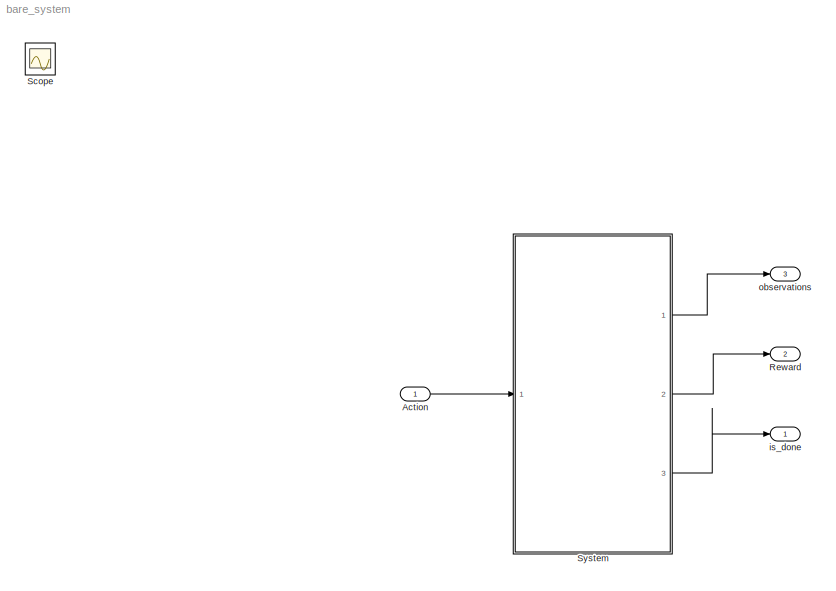
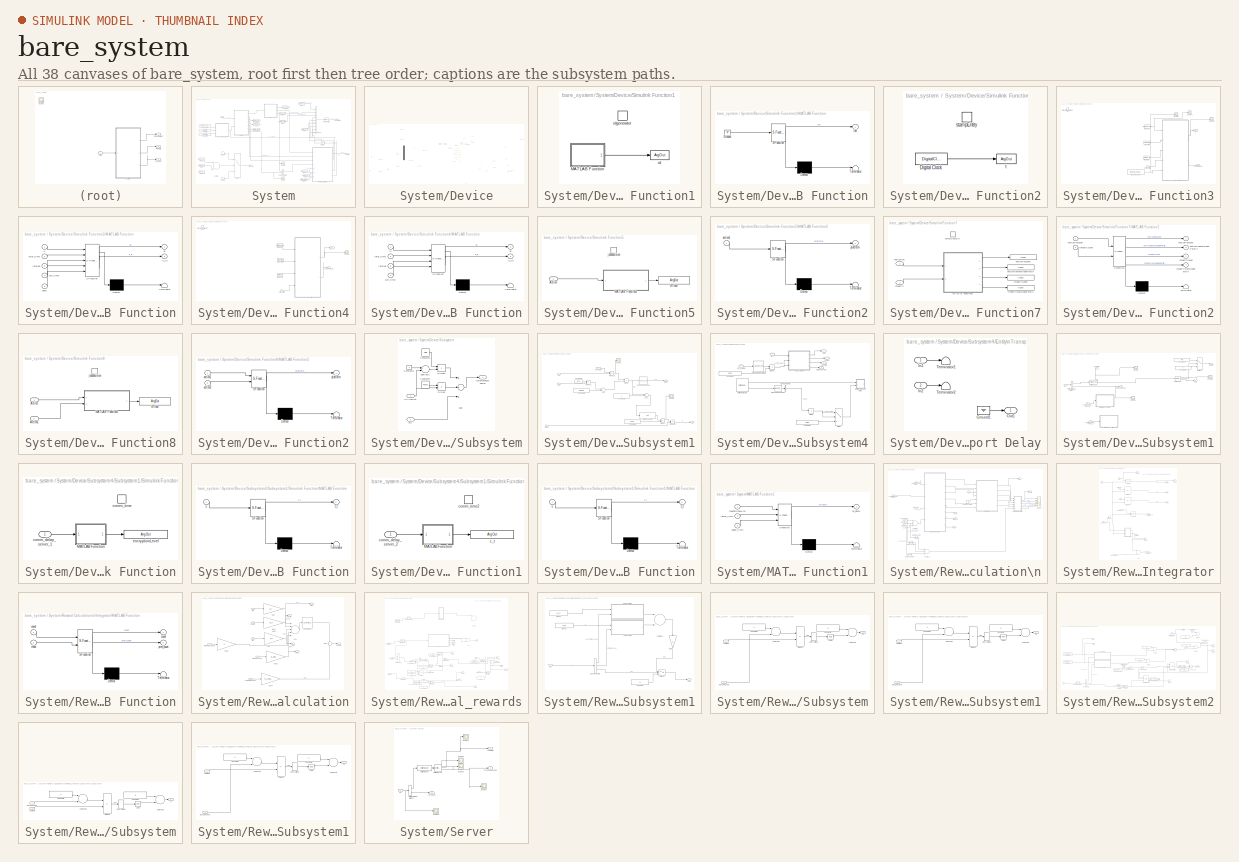
[diagram: thumbnail index - all 38 canvases of the model, root first then tree order]
MODEL bare_system
KIND model
BLOCK [Inport] Action
  IconDisplay = Port number
  SID = 502
  SampleTime = interval
BLOCK [Outport] Reward
  IconDisplay = Port number
  Port = 2
  SID = 501
  VectorParamsAs1DForOutWhenUnconnected = on
BLOCK [Scope] Scope
  Floating = off
  IOType = viewer
  NumInputPorts = 1
  Ports = []
  SID = 943
  ScopeSpecificationString = Simulink.scopes.TimeScopeBlockCfg('CurrentConfiguration', extmgr.ConfigurationSet(extmgr.Configuration('Core','General UI',true),extmgr.Configuration('Core','Source UI',true),extmgr.Configuration('Sources','WiredSimulink',true,'DataLoggingVariableName','ScopeData1'),extmgr.Configuration('Visuals','Time Domain',true,'SerializedDisplays',{struct('MinYLimReal','2.00000','MaxYLimReal','4.00000','YLabe...<+1398ch>
BLOCK [SubSystem] System
  Ports = [1, 3]
  RequestExecContextInheritance = off
  SID = 512
BLOCK [Inport] System/Action
  IconDisplay = Port number
  SID = 513
BLOCK [Constant] System/Constant1
  SID = 504
  Value = 0
BLOCK [Constant] System/Constant6
  SID = 505
BLOCK [SubSystem] System/Device
  Ports = [2, 7]
  RequestExecContextInheritance = off
  SID = 1
BLOCK [Inport] System/Device/Action
  IconDisplay = Port number
  SID = 2
BLOCK [BusSelector] System/Device/Bus\nSelector
  OutputAsBus = off
  OutputSignals = encryptionLevel,encryptionWorkloadPerBit,integrityLevel,integrityWorkloadPerBit,computeWorkloadPerBit,platform
  Ports = [1, 6]
  SID = 918
BLOCK [Clock] System/Device/Clock
  SID = 4
BLOCK [Clock] System/Device/Clock1
  SID = 5
BLOCK [Outport] System/Device/Comm_length
  IconDisplay = Port number
  Port = 6
  SID = 197
  VectorParamsAs1DForOutWhenUnconnected = on
BLOCK [Demux] System/Device/Demux
  DisplayOption = bar
  Outputs = 3
  Ports = [1, 3]
  SID = 6
BLOCK [Outport] System/Device/Dropped Jobs
  IconDisplay = Port number
  Port = 7
  SID = 641
  VectorParamsAs1DForOutWhenUnconnected = on
BLOCK [EntityGenerator] System/Device/Entity Generator1
  AttributeInitialValue = 100|0
  AttributeName = Size|GenerationTime
  EntityType = Bus object
  EntityTypeName = Job
  GenerateAction = entity.generationTime=stampEntity();\nentity.size=j1_data_size; %200 kb\nentity.id=idgenerator();\n\nentity.computeWorkloadPerBit=j1_computeLoadPerBit;\n[entity.encryptionLevel, entity.encryptionWorkloadPerBit,entity.integrityLevel, entity.integrityWorkloadPerBit] =selectSecurity();\nentity.dropped=0;\n% action=job1decision();\n% r=rand();\n% if (r<=action)\n%     entity.platform=1;\n% else\n%    ...<+59ch>
  GenerateEntityAtSimulationStart = off
  IntergenerationTimeAction = dt = predefinedArrivalTime();
  OutputPortMap = o3
  OutputPortMessageModes = m
  Ports = [0, 1]
  SID = 10
  TimeSource = MATLAB action
BLOCK [EntityQueue] System/Device/Entity Queue
  Capacity = 20
  InputPortMap = u0
  InputPortMessageModes = m
  NumberEntitiesInBlock = on
  OutputPortMap = o1,o5
  OutputPortMessageModes = n,m
  Ports = [1, 2]
  SID = 12
BLOCK [EntityReplicator] System/Device/Entity Replicator
  InputPortMap = u0
  InputPortMessageModes = m
  OutputPortMap = o0,o1
  OutputPortMessageModes = m,m
  Ports = [1, 2]
  SID = 917
BLOCK [EntityServer] System/Device/Entity Server
  AverageWait = on
  Capacity = device_cpu_cores
  InputPortMap = u2
  InputPortMessageModes = m
  OutputPortMap = o4,o5,o9
  OutputPortMessageModes = n,n,m
  Ports = [1, 3]
  SID = 13
  ServiceTimeAction = % Exponential service time with rate 1\n% mean = 0.1;\nif(entity.platform==1)\n   wl=entity.computeWorkloadPerBit*entity.size; \n   \nelse\n    wl=Im*(entity.encryptionWorkloadPerBit*entity.size+entity.integrityWorkloadPerBit*entity.size); \n    \nend\ndt=wl/Im;\n\n% dt   = -average_computation_time_local * log(1 - rand());
  ServiceTimeSource = MATLAB action
  Utilization = on
BLOCK [EntityInputSwitch] System/Device/Entity\nInput Switch
  InputPortMap = u1,u2
  InputPortMessageModes = m,m
  OutputPortMap = o0
  OutputPortMessageModes = m
  Ports = [2, 1]
  SID = 646
BLOCK [EntityOutputSwitch] System/Device/Entity\nOutput Switch1
  InputPortMap = u1
  InputPortMessageModes = m
  OutputPortMap = o0,o1
  OutputPortMessageModes = m,m
  Ports = [1, 2]
  SID = 640
  SwitchAttributeName = platform
BLOCK [EntityOutputSwitch] System/Device/Entity\nOutput Switch2
  InputPortMap = u1
  InputPortMessageModes = m
  OutputPortMap = o0,o1
  OutputPortMessageModes = m,m
  Ports = [1, 2]
  SID = 9
  SwitchAttributeName = platform
  SwitchingCriterion = From attribute
BLOCK [Outport] System/Device/Instantaneous Power
  IconDisplay = Port number
  Port = 5
  SID = 133
  VectorParamsAs1DForOutWhenUnconnected = on
BLOCK [Outport] System/Device/JobsInInterval
  IconDisplay = Port number
  Port = 4
  SID = 132
  VectorParamsAs1DForOutWhenUnconnected = on
BLOCK [Outport] System/Device/Length\n
  IconDisplay = Port number
  Port = 3
  SID = 131
  VectorParamsAs1DForOutWhenUnconnected = on
BLOCK [MessageReceive] System/Device/Message Receive
  InputPortMap = u0
  InputPortMessageModes = m
  OutputPortMap = o1
  Ports = [1, 1]
  SID = 916
BLOCK [Outport] System/Device/Offloaded Jobs
  IconDisplay = Port number
  SID = 129
  VectorParamsAs1DForOutWhenUnconnected = on
BLOCK [Outport] System/Device/Processed Jobs
  IconDisplay = Port number
  Port = 2
  SID = 130
  VectorParamsAs1DForOutWhenUnconnected = on
BLOCK [Scope] System/Device/Scope1
  Floating = off
  NumInputPorts = 1
  Ports = [1]
  SID = 845
  ScopeSpecificationString = Simulink.scopes.TimeScopeBlockCfg('CurrentConfiguration', extmgr.ConfigurationSet(extmgr.Configuration('Core','General UI',true),extmgr.Configuration('Core','Source UI',true),extmgr.Configuration('Sources','WiredSimulink',true,'DataLoggingVariableName','ScopeData6'),extmgr.Configuration('Visuals','Time Domain',true,'SerializedDisplays',{struct('MinYLimReal','-0.0176','MaxYLimReal','0.50219','YLabe...<+1710ch>
BLOCK [Scope] System/Device/Scope3
  Floating = off
  NumInputPorts = 1
  Ports = [1]
  SID = 903
  ScopeSpecificationString = Simulink.scopes.TimeScopeBlockCfg('CurrentConfiguration', extmgr.ConfigurationSet(extmgr.Configuration('Core','General UI',true),extmgr.Configuration('Core','Source UI',true),extmgr.Configuration('Sources','WiredSimulink',true,'DataLoggingVariableName','ScopeData1'),extmgr.Configuration('Visuals','Time Domain',true,'SerializedDisplays',{struct('MinYLimReal','-0.02137','MaxYLimReal','0.19232','YLab...<+1711ch>
BLOCK [Scope] System/Device/Scope6
  Floating = off
  NumInputPorts = 1
  Ports = [1]
  SID = 913
  ScopeSpecificationString = Simulink.scopes.TimeScopeBlockCfg('CurrentConfiguration', extmgr.ConfigurationSet(extmgr.Configuration('Core','General UI',true),extmgr.Configuration('Core','Source UI',true),extmgr.Configuration('Sources','WiredSimulink',true,'DataLoggingVariableName','ScopeData2'),extmgr.Configuration('Visuals','Time Domain',true,'SerializedDisplays',{struct('MinYLimReal','-209715.2','MaxYLimReal','1887436.8','Y...<+2024ch>
BLOCK [Scope] System/Device/Scope7
  Floating = off
  NumInputPorts = 1
  Ports = [1]
  SID = 914
  ScopeSpecificationString = Simulink.scopes.TimeScopeBlockCfg('CurrentConfiguration', extmgr.ConfigurationSet(extmgr.Configuration('Core','General UI',true),extmgr.Configuration('Core','Source UI',true),extmgr.Configuration('Sources','WiredSimulink',true,'DataLoggingVariableName','ScopeData3'),extmgr.Configuration('Visuals','Time Domain',true,'SerializedDisplays',{struct('MinYLimReal','-209715.2','MaxYLimReal','1887436.8','Y...<+2145ch>
BLOCK [Scope] System/Device/Scope8
  Floating = off
  NumInputPorts = 1
  Ports = [1]
  SID = 915
  ScopeSpecificationString = Simulink.scopes.TimeScopeBlockCfg('CurrentConfiguration', extmgr.ConfigurationSet(extmgr.Configuration('Core','General UI',true),extmgr.Configuration('Core','Source UI',true),extmgr.Configuration('Sources','WiredSimulink',true,'DataLoggingVariableName','ScopeData4'),extmgr.Configuration('Visuals','Time Domain',true,'SerializedDisplays',{struct('MinYLimReal','-0.125','MaxYLimReal','1.125','YLabelRe...<+1647ch>
BLOCK [Scope] System/Device/Scope9
  Floating = off
  NumInputPorts = 6
  Ports = [6]
  SID = 919
  ScopeSpecificationString = Simulink.scopes.TimeScopeBlockCfg('CurrentConfiguration', extmgr.ConfigurationSet(extmgr.Configuration('Core','General UI',true),extmgr.Configuration('Core','Source UI',true),extmgr.Configuration('Sources','WiredSimulink',true,'DataLoggingVariableName','ScopeData5'),extmgr.Configuration('Visuals','Time Domain',true,'SerializedDisplays',{struct('MinYLimReal','-0.125','MaxYLimReal','1.125','YLabelRe...<+5139ch>
BLOCK [SubSystem] System/Device/Simulink Function1
  Ports = [0, 0, 0, 1]
  RequestExecContextInheritance = off
  SID = 17
  TreatAsAtomicUnit = on
BLOCK [SubSystem] System/Device/Simulink Function1/MATLAB Function
  ErrorFcn = Stateflow.Translate.translate
  PermitHierarchicalResolution = ExplicitOnly
  Ports = [0, 1]
  RequestExecContextInheritance = off
  SFBlockType = MATLAB Function
  SID = 19
  TreatAsAtomicUnit = on
BLOCK [Demux] System/Device/Simulink Function1/MATLAB Function/ Demux 
  Outputs = 1
  Ports = [1, 1]
  SID = 19::28
BLOCK [Ground] System/Device/Simulink Function1/MATLAB Function/ Ground 
  SID = 19::30
BLOCK [S-Function] System/Device/Simulink Function1/MATLAB Function/ SFunction 
  EnableBusSupport = on
  FunctionName = sf_sfun
  PortCounts = [1 2]
  Ports = [1, 2]
  SFcnIsStateOwnerBlock = off
  SFunctionDeploymentMode = off
  SID = 19::27
  Tag = Stateflow S-Function bare_system 2
BLOCK [Terminator] System/Device/Simulink Function1/MATLAB Function/ Terminator 
  SID = 19::29
BLOCK [Outport] System/Device/Simulink Function1/MATLAB Function/idx
  IconDisplay = Port number
  SID = 19::5
  VectorParamsAs1DForOutWhenUnconnected = on
BLOCK [ArgOut] System/Device/Simulink Function1/id
  ArgumentName = id
  DisableCoverage = on
  SID = 20
BLOCK [TriggerPort] System/Device/Simulink Function1/idgenerator
  FunctionName = idgenerator
  IsSimulinkFunction = on
  Ports = []
  SID = 18
  StatesWhenEnabling = held
  TriggerType = function-call
  VariantControl = Variant
BLOCK [SubSystem] System/Device/Simulink Function2
  Ports = [0, 0, 0, 1]
  RequestExecContextInheritance = off
  SID = 21
  TreatAsAtomicUnit = on
BLOCK [DigitalClock] System/Device/Simulink Function2/Digital Clock
  SID = 23
  SampleTime = -1
BLOCK [TriggerPort] System/Device/Simulink Function2/stampEntity
  FunctionName = stampEntity
  IsSimulinkFunction = on
  Ports = []
  SID = 22
  StatesWhenEnabling = held
  TriggerType = function-call
  VariantControl = Variant
BLOCK [ArgOut] System/Device/Simulink Function2/t
  ArgumentName = t
  DisableCoverage = on
  SID = 24
BLOCK [SubSystem] System/Device/Simulink Function3
  Ports = [1, 1, 0, 1]
  RequestExecContextInheritance = off
  SID = 25
  TreatAsAtomicUnit = on
BLOCK [Constant] System/Device/Simulink Function3/Arrival Rate2
  SID = 28
  SampleTime = -1
  Value = interval
BLOCK [Outport] System/Device/Simulink Function3/JobsInInterval
  IconDisplay = Port number
  SID = 35
  VectorParamsAs1DForOutWhenUnconnected = on
BLOCK [SubSystem] System/Device/Simulink Function3/MATLAB Function
  ErrorFcn = Stateflow.Translate.translate
  PermitHierarchicalResolution = ExplicitOnly
  Ports = [5, 2]
  RequestExecContextInheritance = off
  SFBlockType = MATLAB Function
  SID = 29
  TreatAsAtomicUnit = on
BLOCK [Demux] System/Device/Simulink Function3/MATLAB Function/ Demux 
  Outputs = 1
  Ports = [1, 1]
  SID = 29::37
BLOCK [S-Function] System/Device/Simulink Function3/MATLAB Function/ SFunction 
  EnableBusSupport = on
  FunctionName = sf_sfun
  PortCounts = [5 3]
  Ports = [5, 3]
  SFcnIsStateOwnerBlock = off
  SFunctionDeploymentMode = off
  SID = 29::36
  Tag = Stateflow S-Function bare_system 1
BLOCK [Terminator] System/Device/Simulink Function3/MATLAB Function/ Terminator 
  SID = 29::38
BLOCK [Inport] System/Device/Simulink Function3/MATLAB Function/curr_time
  IconDisplay = Port number
  Port = 4
  SID = 29::27
BLOCK [Outport] System/Device/Simulink Function3/MATLAB Function/dt
  IconDisplay = Port number
  SID = 29::5
  VectorParamsAs1DForOutWhenUnconnected = on
BLOCK [Inport] System/Device/Simulink Function3/MATLAB Function/interval
  IconDisplay = Port number
  Port = 3
  SID = 29::24
BLOCK [Outport] System/Device/Simulink Function3/MATLAB Function/j1_in
  IconDisplay = Port number
  Port = 2
  SID = 29::30
  VectorParamsAs1DForOutWhenUnconnected = on
BLOCK [Inport] System/Device/Simulink Function3/MATLAB Function/l1
  IconDisplay = Port number
  SID = 29::26
BLOCK [Inport] System/Device/Simulink Function3/MATLAB Function/seed
  IconDisplay = Port number
  Port = 5
  SID = 29::32
BLOCK [Inport] System/Device/Simulink Function3/MATLAB Function/total_time
  IconDisplay = Port number
  Port = 2
  SID = 29::23
BLOCK [Scope] System/Device/Simulink Function3/Scope1
  Floating = off
  NumInputPorts = 1
  Ports = [1]
  SID = 853
  ScopeSpecificationString = Simulink.scopes.TimeScopeBlockCfg('CurrentConfiguration', extmgr.ConfigurationSet(extmgr.Configuration('Core','General UI',true),extmgr.Configuration('Core','Source UI',true),extmgr.Configuration('Sources','WiredSimulink',true,'DataLoggingVariableName','ScopeData1'),extmgr.Configuration('Visuals','Time Domain',true,'SerializedDisplays',{struct('MinYLimReal','108334.3','MaxYLimReal','308334.3','YLa...<+1525ch>
BLOCK [Scope] System/Device/Simulink Function3/Scope2
  Floating = off
  NumInputPorts = 1
  Ports = [1]
  SID = 897
  ScopeSpecificationString = Simulink.scopes.TimeScopeBlockCfg('CurrentConfiguration', extmgr.ConfigurationSet(extmgr.Configuration('Core','General UI',true),extmgr.Configuration('Core','Source UI',true),extmgr.Configuration('Sources','WiredSimulink',true,'DataLoggingVariableName','ScopeData1'),extmgr.Configuration('Visuals','Time Domain',true,'SerializedDisplays',{struct('MinYLimReal','2.00000','MaxYLimReal','4.00000','YLabe...<+1517ch>
BLOCK [Scope] System/Device/Simulink Function3/Scope5
  Floating = off
  NumInputPorts = 1
  Ports = [1]
  SID = 30
  ScopeSpecificationString = Simulink.scopes.TimeScopeBlockCfg('CurrentConfiguration', extmgr.ConfigurationSet(extmgr.Configuration('Core','General UI',true),extmgr.Configuration('Core','Source UI',true),extmgr.Configuration('Sources','WiredSimulink',true,'DataLoggingVariableName','ScopeData2'),extmgr.Configuration('Visuals','Time Domain',true,'SerializedDisplays',{struct('MinYLimReal','-0.2036','MaxYLimReal','1.87189','YLabe...<+1523ch>
BLOCK [Inport] System/Device/Simulink Function3/current_time
  IconDisplay = Port number
  SID = 26
BLOCK [Constant] System/Device/Simulink Function3/lambda1
  SID = 31
  SampleTime = -1
  Value = lambda1Arg
BLOCK [TriggerPort] System/Device/Simulink Function3/predefinedArrivalTime
  FunctionName = predefinedArrivalTime
  IsSimulinkFunction = on
  Ports = []
  SID = 27
  StatesWhenEnabling = held
  TriggerType = function-call
  VariantControl = Variant
BLOCK [Constant] System/Device/Simulink Function3/random_seed
  SID = 32
  SampleTime = -1
  Value = random_seedArg
BLOCK [Constant] System/Device/Simulink Function3/stopTime
  SID = 33
  SampleTime = -1
  Value = stopTime
BLOCK [ArgOut] System/Device/Simulink Function3/t1
  ArgumentName = t
  DisableCoverage = on
  SID = 34
BLOCK [SubSystem] System/Device/Simulink Function4
  Ports = [1, 1, 0, 1]
  RequestExecContextInheritance = off
  SID = 36
  TreatAsAtomicUnit = on
BLOCK [Constant] System/Device/Simulink Function4/Arrival Rate2
  SID = 39
  SampleTime = -1
  Value = interval
BLOCK [Outport] System/Device/Simulink Function4/JobsInInterval1
  IconDisplay = Port number
  SID = 45
  VectorParamsAs1DForOutWhenUnconnected = on
BLOCK [SubSystem] System/Device/Simulink Function4/MATLAB Function
  ErrorFcn = Stateflow.Translate.translate
  PermitHierarchicalResolution = ExplicitOnly
  Ports = [4, 2]
  RequestExecContextInheritance = off
  SFBlockType = MATLAB Function
  SID = 40
  TreatAsAtomicUnit = on
BLOCK [Demux] System/Device/Simulink Function4/MATLAB Function/ Demux 
  Outputs = 1
  Ports = [1, 1]
  SID = 40::36
BLOCK [S-Function] System/Device/Simulink Function4/MATLAB Function/ SFunction 
  EnableBusSupport = on
  FunctionName = sf_sfun
  PortCounts = [4 3]
  Ports = [4, 3]
  SFcnIsStateOwnerBlock = off
  SFunctionDeploymentMode = off
  SID = 40::35
  Tag = Stateflow S-Function bare_system 4
BLOCK [Terminator] System/Device/Simulink Function4/MATLAB Function/ Terminator 
  SID = 40::37
BLOCK [Inport] System/Device/Simulink Function4/MATLAB Function/curr_time
  IconDisplay = Port number
  Port = 4
  SID = 40::27
BLOCK [Outport] System/Device/Simulink Function4/MATLAB Function/dt
  IconDisplay = Port number
  SID = 40::25
  VectorParamsAs1DForOutWhenUnconnected = on
BLOCK [Inport] System/Device/Simulink Function4/MATLAB Function/interval
  IconDisplay = Port number
  Port = 3
  SID = 40::24
BLOCK [Outport] System/Device/Simulink Function4/MATLAB Function/j2_in
  IconDisplay = Port number
  Port = 2
  SID = 40::31
  VectorParamsAs1DForOutWhenUnconnected = on
BLOCK [Inport] System/Device/Simulink Function4/MATLAB Function/l2
  IconDisplay = Port number
  SID = 40::29
BLOCK [Inport] System/Device/Simulink Function4/MATLAB Function/total_time
  IconDisplay = Port number
  Port = 2
  SID = 40::23
BLOCK [Scope] System/Device/Simulink Function4/Scope1
  Floating = off
  NumInputPorts = 1
  Ports = [1]
  SID = 41
  ScopeSpecificationString = Simulink.scopes.TimeScopeBlockCfg('CurrentConfiguration', extmgr.ConfigurationSet(extmgr.Configuration('Core','General UI',true),extmgr.Configuration('Core','Source UI',true),extmgr.Configuration('Sources','WiredSimulink',true,'DataLoggingVariableName','ScopeData3'),extmgr.Configuration('Visuals','Time Domain',true,'SerializedDisplays',{struct('MinYLimReal','-0.26447','MaxYLimReal','2.53194','YLab...<+1523ch>
BLOCK [Inport] System/Device/Simulink Function4/current_time
  IconDisplay = Port number
  SID = 37
BLOCK [Constant] System/Device/Simulink Function4/lambda2
  SID = 42
  SampleTime = -1
  Value = lambda2Arg
BLOCK [TriggerPort] System/Device/Simulink Function4/predefinedArrivalTime2
  FunctionName = predefinedArrivalTime2
  IsSimulinkFunction = on
  Ports = []
  SID = 38
  StatesWhenEnabling = held
  TriggerType = function-call
  VariantControl = Variant
BLOCK [Constant] System/Device/Simulink Function4/stopTime
  SID = 43
  SampleTime = -1
  Value = stopTime
BLOCK [ArgOut] System/Device/Simulink Function4/t
  ArgumentName = t
  DisableCoverage = on
  SID = 44
BLOCK [SubSystem] System/Device/Simulink Function5
  Ports = [1, 0, 0, 1]
  RequestExecContextInheritance = off
  SID = 135
  TreatAsAtomicUnit = on
BLOCK [Inport] System/Device/Simulink Function5/Action
  IconDisplay = Port number
  SID = 136
BLOCK [SubSystem] System/Device/Simulink Function5/MATLAB Function2
  ErrorFcn = Stateflow.Translate.translate
  PermitHierarchicalResolution = ExplicitOnly
  Ports = [1, 1]
  RequestExecContextInheritance = off
  SFBlockType = MATLAB Function
  SID = 138
  TreatAsAtomicUnit = on
BLOCK [Demux] System/Device/Simulink Function5/MATLAB Function2/ Demux 
  Outputs = 1
  Ports = [1, 1]
  SID = 138::27
BLOCK [S-Function] System/Device/Simulink Function5/MATLAB Function2/ SFunction 
  EnableBusSupport = on
  FunctionName = sf_sfun
  PortCounts = [1 2]
  Ports = [1, 2]
  SFcnIsStateOwnerBlock = off
  SFunctionDeploymentMode = off
  SID = 138::26
  Tag = Stateflow S-Function bare_system 6
BLOCK [Terminator] System/Device/Simulink Function5/MATLAB Function2/ Terminator 
  SID = 138::28
BLOCK [Inport] System/Device/Simulink Function5/MATLAB Function2/action1
  IconDisplay = Port number
  SID = 138::1
BLOCK [Outport] System/Device/Simulink Function5/MATLAB Function2/platform
  IconDisplay = Port number
  SID = 138::5
  VectorParamsAs1DForOutWhenUnconnected = on
BLOCK [TriggerPort] System/Device/Simulink Function5/job1decision
  FunctionName = job1decision
  FunctionVisibility = scoped
  IsSimulinkFunction = on
  Ports = []
  SID = 137
  StatesWhenEnabling = held
  TriggerType = function-call
  VariantControl = (inherit)
BLOCK [ArgOut] System/Device/Simulink Function5/offload
  ArgumentName = platform
  DisableCoverage = on
  SID = 139
BLOCK [SubSystem] System/Device/Simulink Function7
  Ports = [2, 0, 0, 1]
  RequestExecContextInheritance = off
  SID = 52
  TreatAsAtomicUnit = on
BLOCK [SubSystem] System/Device/Simulink Function7/MATLAB Function2
  ErrorFcn = Stateflow.Translate.translate
  PermitHierarchicalResolution = ExplicitOnly
  Ports = [2, 4]
  RequestExecContextInheritance = off
  SFBlockType = MATLAB Function
  SID = 56
  TreatAsAtomicUnit = on
BLOCK [Demux] System/Device/Simulink Function7/MATLAB Function2/ Demux 
  Outputs = 1
  Ports = [1, 1]
  SID = 56::30
BLOCK [S-Function] System/Device/Simulink Function7/MATLAB Function2/ SFunction 
  EnableBusSupport = on
  FunctionName = sf_sfun
  PortCounts = [2 5]
  Ports = [2, 5]
  SFcnIsStateOwnerBlock = off
  SFunctionDeploymentMode = off
  SID = 56::29
  Tag = Stateflow S-Function bare_system 3
BLOCK [Terminator] System/Device/Simulink Function7/MATLAB Function2/ Terminator 
  SID = 56::31
BLOCK [Outport] System/Device/Simulink Function7/MATLAB Function2/encryptionLevel
  IconDisplay = Port number
  SID = 56::5
  VectorParamsAs1DForOutWhenUnconnected = on
BLOCK [Inport] System/Device/Simulink Function7/MATLAB Function2/encryptionLevel 
  IconDisplay = Port number
  SID = 56::1
BLOCK [Outport] System/Device/Simulink Function7/MATLAB Function2/encryptionWorkloadPerBit
  IconDisplay = Port number
  Port = 2
  SID = 56::23
  VectorParamsAs1DForOutWhenUnconnected = on
BLOCK [Outport] System/Device/Simulink Function7/MATLAB Function2/integrityLevel
  IconDisplay = Port number
  Port = 3
  SID = 56::24
  VectorParamsAs1DForOutWhenUnconnected = on
BLOCK [Inport] System/Device/Simulink Function7/MATLAB Function2/integrityLevel 
  IconDisplay = Port number
  Port = 2
  SID = 56::22
BLOCK [Outport] System/Device/Simulink Function7/MATLAB Function2/integrityWorkloadPerBit
  IconDisplay = Port number
  Port = 4
  SID = 56::25
  VectorParamsAs1DForOutWhenUnconnected = on
BLOCK [Inport] System/Device/Simulink Function7/encryption
  IconDisplay = Port number
  SID = 53
BLOCK [ArgOut] System/Device/Simulink Function7/encryptionLevel
  ArgumentName = encryptionLevel
  DisableCoverage = on
  SID = 57
BLOCK [ArgOut] System/Device/Simulink Function7/encryptionWorkloadPerBit
  ArgumentName = encryptionWorkloadPerBit
  DisableCoverage = on
  Port = 2
  SID = 58
BLOCK [Inport] System/Device/Simulink Function7/integrity
  IconDisplay = Port number
  Port = 2
  SID = 54
BLOCK [ArgOut] System/Device/Simulink Function7/integrityLevel
  ArgumentName = integrityLevel
  DisableCoverage = on
  Port = 3
  SID = 59
BLOCK [ArgOut] System/Device/Simulink Function7/integrityWorkloadPerBit
  ArgumentName = integrityWorkloadPerBit
  DisableCoverage = on
  Port = 4
  SID = 60
BLOCK [TriggerPort] System/Device/Simulink Function7/selectSecurity
  FunctionName = selectSecurity
  FunctionVisibility = scoped
  IsSimulinkFunction = on
  Ports = []
  SID = 55
  StatesWhenEnabling = held
  TriggerType = function-call
  VariantControl = (inherit)
BLOCK [SubSystem] System/Device/Simulink Function8
  Commented = on
  Ports = [2, 0, 0, 1]
  RequestExecContextInheritance = off
  SID = 61
  TreatAsAtomicUnit = on
BLOCK [Inport] System/Device/Simulink Function8/Action
  IconDisplay = Port number
  SID = 62
BLOCK [Inport] System/Device/Simulink Function8/Action1
  IconDisplay = Port number
  Port = 2
  SID = 63
BLOCK [SubSystem] System/Device/Simulink Function8/MATLAB Function2
  ErrorFcn = Stateflow.Translate.translate
  PermitHierarchicalResolution = ExplicitOnly
  Ports = [2, 1]
  RequestExecContextInheritance = off
  SFBlockType = MATLAB Function
  SID = 65
  TreatAsAtomicUnit = on
BLOCK [Demux] System/Device/Simulink Function8/MATLAB Function2/ Demux 
  Outputs = 1
  Ports = [1, 1]
  SID = 65::27
BLOCK [S-Function] System/Device/Simulink Function8/MATLAB Function2/ SFunction 
  EnableBusSupport = on
  FunctionName = sf_sfun
  PortCounts = [2 2]
  Ports = [2, 2]
  SFcnIsStateOwnerBlock = off
  SFunctionDeploymentMode = off
  SID = 65::26
  Tag = Stateflow S-Function bare_system 5
BLOCK [Terminator] System/Device/Simulink Function8/MATLAB Function2/ Terminator 
  SID = 65::28
BLOCK [Inport] System/Device/Simulink Function8/MATLAB Function2/action1
  IconDisplay = Port number
  SID = 65::1
BLOCK [Inport] System/Device/Simulink Function8/MATLAB Function2/action2
  IconDisplay = Port number
  Port = 2
  SID = 65::22
BLOCK [Outport] System/Device/Simulink Function8/MATLAB Function2/platform
  IconDisplay = Port number
  SID = 65::5
  VectorParamsAs1DForOutWhenUnconnected = on
BLOCK [TriggerPort] System/Device/Simulink Function8/job2decision
  FunctionName = job2decision
  FunctionVisibility = scoped
  IsSimulinkFunction = on
  Ports = []
  SID = 64
  StatesWhenEnabling = held
  TriggerType = function-call
  VariantControl = (inherit)
BLOCK [ArgOut] System/Device/Simulink Function8/offload
  ArgumentName = platform
  DisableCoverage = on
  SID = 66
BLOCK [SubSystem] System/Device/Subsystem
  Ports = [2, 1]
  RequestExecContextInheritance = off
  SID = 67
BLOCK [Constant] System/Device/Subsystem/Constant1
  SID = 70
BLOCK [Constant] System/Device/Subsystem/Constant2
  SID = 71
  Value = Pidle
BLOCK [Constant] System/Device/Subsystem/Constant4
  SID = 72
  Value = Pexec
BLOCK [Product] System/Device/Subsystem/Divide
  InputSameDT = off
  Inputs = **
  OutDataTypeStr = Inherit: Inherit via internal rule
  Ports = [2, 1]
  RndMeth = Floor
  SID = 73
  SaturateOnIntegerOverflow = off
BLOCK [Product] System/Device/Subsystem/Divide1
  InputSameDT = off
  Inputs = **
  OutDataTypeStr = Inherit: Inherit via internal rule
  Ports = [2, 1]
  RndMeth = Floor
  SID = 74
  SaturateOnIntegerOverflow = off
BLOCK [Outport] System/Device/Subsystem/Instantaneous Power
  IconDisplay = Port number
  SID = 77
  VectorParamsAs1DForOutWhenUnconnected = on
BLOCK [Inport] System/Device/Subsystem/Ptx
  IconDisplay = Port number
  Port = 2
  SID = 69
BLOCK [Sum] System/Device/Subsystem/Subtract1
  InputSameDT = off
  Inputs = +-
  OutDataTypeStr = Inherit: Inherit via internal rule
  Ports = [2, 1]
  SID = 75
  SaturateOnIntegerOverflow = off
BLOCK [Inport] System/Device/Subsystem/Utilisation
  IconDisplay = Port number
  SID = 68
BLOCK [Sum] System/Device/Subsystem/add
  InputSameDT = off
  Inputs = +++
  OutDataTypeStr = Inherit: Inherit via internal rule
  Ports = [3, 1]
  SID = 76
  SaturateOnIntegerOverflow = off
BLOCK [SubSystem] System/Device/Subsystem1
  Commented = on
  Ports = [3, 2]
  RequestExecContextInheritance = off
  SID = 78
BLOCK [Lookup_n-D] System/Device/Subsystem1/1-D Lookup\nTable
  BreakpointsForDimension1 = [-5:5]
  InternalRulePriority = Speed
  NumberOfTableDimensions = 1
  Ports = [1, 1]
  RndMeth = Simplest
  SID = 82
  Table = tanh([-5:5])
BLOCK [Sum] System/Device/Subsystem1/Add
  InputSameDT = off
  OutDataTypeStr = Inherit: Inherit via internal rule
  Ports = [2, 1]
  SID = 83
  SaturateOnIntegerOverflow = off
BLOCK [Sum] System/Device/Subsystem1/Add1
  InputSameDT = off
  OutDataTypeStr = Inherit: Inherit via internal rule
  Ports = [2, 1]
  SID = 84
  SaturateOnIntegerOverflow = off
BLOCK [Outport] System/Device/Subsystem1/BER
  IconDisplay = Port number
  SID = 98
  VectorParamsAs1DForOutWhenUnconnected = on
BLOCK [Constant] System/Device/Subsystem1/Constant1
  SID = 85
  Value = G21
BLOCK [Constant] System/Device/Subsystem1/Constant2
  SID = 86
BLOCK [Constant] System/Device/Subsystem1/Constant3
  SID = 87
  Value = omega
BLOCK [Constant] System/Device/Subsystem1/Constant6
  SID = 88
  Value = G11
BLOCK [Constant] System/Device/Subsystem1/Constant8
  SID = 89
  Value = log(2)
BLOCK [Product] System/Device/Subsystem1/Divide
  InputSameDT = off
  Inputs = */
  OutDataTypeStr = Inherit: Inherit via internal rule
  Ports = [2, 1]
  RndMeth = Floor
  SID = 90
  SaturateOnIntegerOverflow = off
BLOCK [Product] System/Device/Subsystem1/Divide1
  InputSameDT = off
  Inputs = */
  OutDataTypeStr = Inherit: Inherit via internal rule
  Ports = [2, 1]
  RndMeth = Floor
  SID = 91
  SaturateOnIntegerOverflow = off
BLOCK [Math] System/Device/Subsystem1/Math\nFunction
  Operator = log
  Ports = [1, 1]
  SID = 92
BLOCK [Inport] System/Device/Subsystem1/P-k
  IconDisplay = Port number
  Port = 2
  SID = 80
BLOCK [Inport] System/Device/Subsystem1/Pk
  IconDisplay = Port number
  SID = 79
BLOCK [Product] System/Device/Subsystem1/Product
  InputSameDT = off
  OutDataTypeStr = Inherit: Inherit via internal rule
  Ports = [2, 1]
  RndMeth = Floor
  SID = 93
  SaturateOnIntegerOverflow = off
BLOCK [Product] System/Device/Subsystem1/Product1
  InputSameDT = off
  OutDataTypeStr = Inherit: Inherit via internal rule
  Ports = [2, 1]
  RndMeth = Floor
  SID = 94
  SaturateOnIntegerOverflow = off
BLOCK [Product] System/Device/Subsystem1/Product2
  InputSameDT = off
  OutDataTypeStr = Inherit: Inherit via internal rule
  Ports = [2, 1]
  RndMeth = Floor
  SID = 95
  SaturateOnIntegerOverflow = off
BLOCK [Outport] System/Device/Subsystem1/R
  IconDisplay = Port number
  Port = 2
  SID = 99
  VectorParamsAs1DForOutWhenUnconnected = on
BLOCK [Inport] System/Device/Subsystem1/Rmax
  IconDisplay = Port number
  Port = 3
  SID = 81
BLOCK [Scope] System/Device/Subsystem1/Scope
  Floating = off
  NumInputPorts = 1
  Ports = [1]
  SID = 96
  ScopeSpecificationString = Simulink.scopes.TimeScopeBlockCfg('CurrentConfiguration', extmgr.ConfigurationSet(extmgr.Configuration('Core','General UI',true),extmgr.Configuration('Core','Source UI',true),extmgr.Configuration('Sources','WiredSimulink',true,'DataLoggingVariableName','ScopeData3'),extmgr.Configuration('Visuals','Time Domain',true,'SerializedDisplays',{struct('MinYLimReal','-1.00000','MaxYLimReal','1.00000','YLab...<+1434ch>
BLOCK [Scope] System/Device/Subsystem1/Scope1
  Floating = off
  NumInputPorts = 1
  Ports = [1]
  SID = 97
  ScopeSpecificationString = Simulink.scopes.TimeScopeBlockCfg('CurrentConfiguration', extmgr.ConfigurationSet(extmgr.Configuration('Core','General UI',true),extmgr.Configuration('Core','Source UI',true),extmgr.Configuration('Sources','WiredSimulink',true,'DataLoggingVariableName','ScopeData4'),extmgr.Configuration('Visuals','Time Domain',true,'SerializedDisplays',{struct('MinYLimReal','-1.00000','MaxYLimReal','1.00000','YLab...<+1435ch>
BLOCK [SubSystem] System/Device/Subsystem4
  Ports = [2, 4]
  RequestExecContextInheritance = off
  SID = 160
BLOCK [Lookup_n-D] System/Device/Subsystem4/1-D Lookup\nTable
  BreakpointsForDimension1 = [1:100]
  InternalRulePriority = Speed
  NumberOfTableDimensions = 1
  Ports = [1, 1]
  RndMeth = Simplest
  SID = 163
  Table = Rate
BLOCK [BusSelector] System/Device/Subsystem4/Bus\nSelector1
  Commented = on
  OutputAsBus = off
  OutputSignals = size
  Ports = [1, 1]
  SID = 164
BLOCK [Constant] System/Device/Subsystem4/Constant1
  SID = 165
  Value = 1024
BLOCK [Constant] System/Device/Subsystem4/Constant2
  Commented = on
  SID = 166
  Value = delta
BLOCK [Product] System/Device/Subsystem4/Divide
  Commented = on
  InputSameDT = off
  Inputs = */
  OutDataTypeStr = Inherit: Inherit via internal rule
  Ports = [2, 1]
  RndMeth = Floor
  SID = 167
  SaturateOnIntegerOverflow = off
BLOCK [Product] System/Device/Subsystem4/Divide1
  InputSameDT = off
  Inputs = **
  OutDataTypeStr = Inherit: Inherit via internal rule
  Ports = [2, 1]
  RndMeth = Floor
  SID = 168
  SaturateOnIntegerOverflow = off
BLOCK [Outport] System/Device/Subsystem4/Dropped Jobs
  IconDisplay = Port number
  Port = 4
  SID = 644
  VectorParamsAs1DForOutWhenUnconnected = on
BLOCK [EntityReplicator] System/Device/Subsystem4/Entity Replicator
  Commented = on
  InputPortMap = u0
  InputPortMessageModes = m
  OutputPortMap = o0,o1
  OutputPortMessageModes = m,m
  Ports = [1, 2]
  SID = 170
BLOCK [SubSystem] System/Device/Subsystem4/Entity\nTransport Delay
  Commented = on
  Description = Replaced Block
  Ports = [2, 1]
  RequestExecContextInheritance = off
  SID = 198
BLOCK [Ground] System/Device/Subsystem4/Entity\nTransport Delay/Ground1
  SID = 201
BLOCK [Inport] System/Device/Subsystem4/Entity\nTransport Delay/In1
  IconDisplay = Port number
  SID = 199
BLOCK [Inport] System/Device/Subsystem4/Entity\nTransport Delay/In2
  IconDisplay = Port number
  Port = 2
  SID = 200
BLOCK [Outport] System/Device/Subsystem4/Entity\nTransport Delay/Out1
  IconDisplay = Port number
  SID = 204
  VectorParamsAs1DForOutWhenUnconnected = on
BLOCK [Terminator] System/Device/Subsystem4/Entity\nTransport Delay/Terminator1
  SID = 202
BLOCK [Terminator] System/Device/Subsystem4/Entity\nTransport Delay/Terminator2
  SID = 203
BLOCK [Inport] System/Device/Subsystem4/In1
  IconDisplay = Port number
  SID = 161
BLOCK [Outport] System/Device/Subsystem4/Length\n
  IconDisplay = Port number
  Port = 3
  SID = 196
  VectorParamsAs1DForOutWhenUnconnected = on
BLOCK [MessageReceive] System/Device/Subsystem4/Message Receive1
  Commented = on
  InputPortMap = u0
  InputPortMessageModes = m
  OutputPortMap = o1
  Ports = [1, 1]
  SID = 171
  ValueSourceWhenQueueIsEmpty = Use initial value
BLOCK [Outport] System/Device/Subsystem4/Out1
  IconDisplay = Port number
  SID = 191
  VectorParamsAs1DForOutWhenUnconnected = on
BLOCK [Outport] System/Device/Subsystem4/Power
  IconDisplay = Port number
  Port = 2
  SID = 192
  VectorParamsAs1DForOutWhenUnconnected = on
BLOCK [SubSystem] System/Device/Subsystem4/Subsystem1
  Ports = [3, 4]
  RequestExecContextInheritance = off
  SID = 172
BLOCK [Constant] System/Device/Subsystem4/Subsystem1/Constant1
  SID = 177
  Value = Ptx
BLOCK [Constant] System/Device/Subsystem4/Subsystem1/Constant3
  SID = 179
  Value = 0
BLOCK [Outport] System/Device/Subsystem4/Subsystem1/Dropped Jobs
  IconDisplay = Port number
  Port = 4
  SID = 643
  VectorParamsAs1DForOutWhenUnconnected = on
BLOCK [EntityQueue] System/Device/Subsystem4/Subsystem1/Entity Queue
  Capacity = 20
  InputPortMap = u0
  InputPortMessageModes = m
  NumberEntitiesInBlock = on
  OutputPortMap = o1,o5
  OutputPortMessageModes = n,m
  Ports = [1, 2]
  SID = 181
BLOCK [EntityServer] System/Device/Subsystem4/Subsystem1/Entity Server
  AverageWait = on
  Capacity = 1
  InputPortMap = u2
  InputPortMessageModes = m
  OutputPortMap = o4,o5,o9
  OutputPortMessageModes = n,n,m
  Ports = [1, 3]
  SID = 183
  ServiceTimeAction = % dt = rand(1,1);\n\nwl=entity.size;\nc_t=comm_time();\nc_t2=comm_time2();\nif(entity.platform==2)\n    dt=wl/c_t;\nelse\n    dt=wl/c_t2;\nend
  ServiceTimeSource = MATLAB action
  Utilization = on
BLOCK [EntityOutputSwitch] System/Device/Subsystem4/Subsystem1/Entity\nOutput Switch1
  InputPortMap = u1
  InputPortMessageModes = m
  OutputPortMap = o0,o1
  OutputPortMessageModes = m,m
  Ports = [1, 2]
  SID = 642
  SwitchAttributeName = platform
BLOCK [Inport] System/Device/Subsystem4/Subsystem1/In1
  IconDisplay = Port number
  SID = 173
BLOCK [Outport] System/Device/Subsystem4/Subsystem1/Length\n
  IconDisplay = Port number
  Port = 3
  SID = 195
  VectorParamsAs1DForOutWhenUnconnected = on
BLOCK [Outport] System/Device/Subsystem4/Subsystem1/Out1
  IconDisplay = Port number
  SID = 188
  VectorParamsAs1DForOutWhenUnconnected = on
BLOCK [Outport] System/Device/Subsystem4/Subsystem1/Power
  IconDisplay = Port number
  Port = 2
  SID = 189
  SampleTime = sample_time
  VectorParamsAs1DForOutWhenUnconnected = on
BLOCK [Scope] System/Device/Subsystem4/Subsystem1/Scope
  Floating = off
  NumInputPorts = 1
  Ports = [1]
  SID = 658
  ScopeSpecificationString = Simulink.scopes.TimeScopeBlockCfg('CurrentConfiguration', extmgr.ConfigurationSet(extmgr.Configuration('Core','General UI',true),extmgr.Configuration('Core','Source UI',true),extmgr.Configuration('Sources','WiredSimulink',true,'DataLoggingVariableName','ScopeData1'),extmgr.Configuration('Visuals','Time Domain',true,'SerializedDisplays',{struct('MinYLimReal','-1.00000','MaxYLimReal','9.00000','YLab...<+1394ch>
BLOCK [Scope] System/Device/Subsystem4/Subsystem1/Scope1
  Floating = off
  NumInputPorts = 1
  Ports = [1]
  SID = 659
  ScopeSpecificationString = Simulink.scopes.TimeScopeBlockCfg('CurrentConfiguration', extmgr.ConfigurationSet(extmgr.Configuration('Core','General UI',true),extmgr.Configuration('Core','Source UI',true),extmgr.Configuration('Sources','WiredSimulink',true,'DataLoggingVariableName','ScopeData2'),extmgr.Configuration('Visuals','Time Domain',true,'SerializedDisplays',{struct('MinYLimReal','-209715.2','MaxYLimReal','1887436.8','Y...<+1629ch>
BLOCK [Scope] System/Device/Subsystem4/Subsystem1/Scope2
  Floating = off
  NumInputPorts = 1
  Ports = [1]
  SID = 860
  ScopeSpecificationString = Simulink.scopes.TimeScopeBlockCfg('CurrentConfiguration', extmgr.ConfigurationSet(extmgr.Configuration('Core','General UI',true),extmgr.Configuration('Core','Source UI',true),extmgr.Configuration('Sources','WiredSimulink',true,'DataLoggingVariableName','ScopeData1'),extmgr.Configuration('Visuals','Time Domain',true,'SerializedDisplays',{struct('MinYLimReal','0.48672','MaxYLimReal','0.54238','YLabe...<+1609ch>
BLOCK [SubSystem] System/Device/Subsystem4/Subsystem1/Simulink Function
  Ports = [1, 0, 0, 1]
  RequestExecContextInheritance = off
  SID = 625
  TreatAsAtomicUnit = on
BLOCK [SubSystem] System/Device/Subsystem4/Subsystem1/Simulink Function/MATLAB Function
  ErrorFcn = Stateflow.Translate.translate
  PermitHierarchicalResolution = ExplicitOnly
  Ports = [1, 1]
  RequestExecContextInheritance = off
  SFBlockType = MATLAB Function
  SID = 629
  TreatAsAtomicUnit = on
BLOCK [Demux] System/Device/Subsystem4/Subsystem1/Simulink Function/MATLAB Function/ Demux 
  Outputs = 1
  Ports = [1, 1]
  SID = 629::20
BLOCK [S-Function] System/Device/Subsystem4/Subsystem1/Simulink Function/MATLAB Function/ SFunction 
  EnableBusSupport = on
  FunctionName = sf_sfun
  PortCounts = [1 2]
  Ports = [1, 2]
  SFcnIsStateOwnerBlock = off
  SFunctionDeploymentMode = off
  SID = 629::19
  Tag = Stateflow S-Function bare_system 8
BLOCK [Terminator] System/Device/Subsystem4/Subsystem1/Simulink Function/MATLAB Function/ Terminator 
  SID = 629::21
BLOCK [Outport] System/Device/Subsystem4/Subsystem1/Simulink Function/MATLAB Function/c_t
  IconDisplay = Port number
  SID = 629::5
BLOCK [Inport] System/Device/Subsystem4/Subsystem1/Simulink Function/MATLAB Function/u
  IconDisplay = Port number
  SID = 629::1
BLOCK [Inport] System/Device/Subsystem4/Subsystem1/Simulink Function/comm_delay_server_1
  IconDisplay = Port number
  SID = 631
BLOCK [TriggerPort] System/Device/Subsystem4/Subsystem1/Simulink Function/comm_time
  FunctionName = comm_time
  FunctionVisibility = scoped
  IsSimulinkFunction = on
  Ports = []
  SID = 626
  StatesWhenEnabling = held
  TriggerType = function-call
  VariantControl = (inherit)
BLOCK [ArgOut] System/Device/Subsystem4/Subsystem1/Simulink Function/encryptionLevel
  ArgumentName = c_t
  DisableCoverage = on
  SID = 630
BLOCK [SubSystem] System/Device/Subsystem4/Subsystem1/Simulink Function1
  Ports = [1, 0, 0, 1]
  RequestExecContextInheritance = off
  SID = 634
  TreatAsAtomicUnit = on
BLOCK [SubSystem] System/Device/Subsystem4/Subsystem1/Simulink Function1/MATLAB Function
  ErrorFcn = Stateflow.Translate.translate
  PermitHierarchicalResolution = ExplicitOnly
  Ports = [1, 1]
  RequestExecContextInheritance = off
  SFBlockType = MATLAB Function
  SID = 637
  TreatAsAtomicUnit = on
BLOCK [Demux] System/Device/Subsystem4/Subsystem1/Simulink Function1/MATLAB Function/ Demux 
  Outputs = 1
  Ports = [1, 1]
  SID = 637::20
BLOCK [S-Function] System/Device/Subsystem4/Subsystem1/Simulink Function1/MATLAB Function/ SFunction 
  EnableBusSupport = on
  FunctionName = sf_sfun
  PortCounts = [1 2]
  Ports = [1, 2]
  SFcnIsStateOwnerBlock = off
  SFunctionDeploymentMode = off
  SID = 637::19
  Tag = Stateflow S-Function bare_system 9
BLOCK [Terminator] System/Device/Subsystem4/Subsystem1/Simulink Function1/MATLAB Function/ Terminator 
  SID = 637::21
BLOCK [Outport] System/Device/Subsystem4/Subsystem1/Simulink Function1/MATLAB Function/c_t
  IconDisplay = Port number
  SID = 637::5
BLOCK [Inport] System/Device/Subsystem4/Subsystem1/Simulink Function1/MATLAB Function/u
  IconDisplay = Port number
  SID = 637::1
BLOCK [ArgOut] System/Device/Subsystem4/Subsystem1/Simulink Function1/c_t
  ArgumentName = c_t
  DisableCoverage = on
  SID = 638
BLOCK [Inport] System/Device/Subsystem4/Subsystem1/Simulink Function1/comm_delay_server_2
  IconDisplay = Port number
  SID = 639
BLOCK [TriggerPort] System/Device/Subsystem4/Subsystem1/Simulink Function1/comm_time2
  FunctionName = comm_time2
  FunctionVisibility = scoped
  IsSimulinkFunction = on
  Ports = []
  SID = 636
  StatesWhenEnabling = held
  TriggerType = function-call
  VariantControl = (inherit)
BLOCK [Switch] System/Device/Subsystem4/Subsystem1/Switch2
  Criteria = u2 > Threshold
  InputSameDT = off
  SID = 187
  SaturateOnIntegerOverflow = off
BLOCK [Inport] System/Device/Subsystem4/Subsystem1/comm_delay_server_1
  IconDisplay = Port number
  Port = 3
  SID = 175
BLOCK [Inport] System/Device/Subsystem4/Subsystem1/comm_delay_server_2
  IconDisplay = Port number
  Port = 2
  SID = 174
BLOCK [Switch] System/Device/Subsystem4/Switch
  Commented = on
  Criteria = u2 > Threshold
  InputSameDT = off
  SID = 190
  SaturateOnIntegerOverflow = off
BLOCK [Inport] System/Device/Subsystem4/no_users\n
  IconDisplay = Port number
  Port = 2
  SID = 162
BLOCK [Terminator] System/Device/Terminator
  SID = 562
BLOCK [UnitDelay] System/Device/Unit Delay
  HasFrameUpgradeWarning = on
  InitialCondition = [1 1 1]
  SID = 908
  SampleTime = -1
BLOCK [Inport] System/Device/no_users\n
  IconDisplay = Port number
  Port = 2
  SID = 193
BLOCK [EntityInputSwitch] System/Entity\nInput Switch
  InputPortMap = u1,u2
  InputPortMessageModes = m,m
  OutputPortMap = o0
  OutputPortMessageModes = m
  Ports = [2, 1]
  SID = 655
BLOCK [From] System/From1
  GotoTag = server_length
  SID = 349
BLOCK [From] System/From10
  GotoTag = device_length
  SID = 875
BLOCK [From] System/From2
  GotoTag = server_length
  SID = 506
BLOCK [From] System/From3
  GotoTag = comm_length
  SID = 350
BLOCK [From] System/From4
  Commented = on
  GotoTag = server2_length
  SID = 507
BLOCK [From] System/From5
  GotoTag = device_length
  SID = 508
BLOCK [From] System/From6
  GotoTag = device_length
  SID = 351
BLOCK [From] System/From7
  GotoTag = jobs_in_interval
  SID = 940
BLOCK [From] System/From8
  GotoTag = server_length
  SID = 873
BLOCK [From] System/From9
  GotoTag = comm_length
  SID = 874
BLOCK [Goto] System/Goto
  GotoTag = server_length
  SID = 356
BLOCK [Goto] System/Goto1
  GotoTag = comm_length
  SID = 503
BLOCK [Goto] System/Goto2
  GotoTag = device_length
  SID = 355
BLOCK [Goto] System/Goto3
  GotoTag = jobs_in_interval
  SID = 357
BLOCK [SubSystem] System/MATLAB Function1
  ErrorFcn = Stateflow.Translate.translate
  PermitHierarchicalResolution = ExplicitOnly
  Ports = [3, 1]
  RequestExecContextInheritance = off
  SFBlockType = MATLAB Function
  SID = 142
  SystemSampleTime = interval
  TreatAsAtomicUnit = on
BLOCK [Demux] System/MATLAB Function1/ Demux 
  Outputs = 1
  Ports = [1, 1]
  SID = 142::25
BLOCK [S-Function] System/MATLAB Function1/ SFunction 
  EnableBusSupport = on
  FunctionName = sf_sfun
  PortCounts = [3 2]
  Ports = [3, 2]
  SFcnIsStateOwnerBlock = off
  SFunctionDeploymentMode = off
  SID = 142::24
  Tag = Stateflow S-Function bare_system 7
BLOCK [Terminator] System/MATLAB Function1/ Terminator 
  SID = 142::26
BLOCK [Inport] System/MATLAB Function1/lower_limit
  IconDisplay = Port number
  Port = 2
  SID = 142::29
BLOCK [Outport] System/MATLAB Function1/no_users
  IconDisplay = Port number
  SID = 142::5
  VectorParamsAs1DForOutWhenUnconnected = on
BLOCK [Inport] System/MATLAB Function1/randomSeenArg
  IconDisplay = Port number
  SID = 142::28
BLOCK [Inport] System/MATLAB Function1/upper_limit
  IconDisplay = Port number
  Port = 3
  SID = 142::30
BLOCK [RateTransition] System/Rate Transition
  SID = 842
BLOCK [Outport] System/Reward
  IconDisplay = Port number
  Port = 2
  SID = 516
  VectorParamsAs1DForOutWhenUnconnected = on
BLOCK [SubSystem] System/Reward Calculation\n
  Ports = [7, 5]
  RequestExecContextInheritance = off
  SID = 205
BLOCK [Inport] System/Reward Calculation\n/Comm length
  IconDisplay = Port number
  Port = 7
  SID = 895
BLOCK [Inport] System/Reward Calculation\n/Completed Jobs Local
  IconDisplay = Port number
  Port = 2
  SID = 208
BLOCK [Inport] System/Reward Calculation\n/Completed Jobs Server
  IconDisplay = Port number
  SID = 207
BLOCK [Inport] System/Reward Calculation\n/Device length
  IconDisplay = Port number
  Port = 5
  SID = 893
BLOCK [Inport] System/Reward Calculation\n/Dropped\n
  IconDisplay = Port number
  Port = 4
  SID = 654
BLOCK [SubSystem] System/Reward Calculation\n/Integrator
  Ports = [7, 5]
  RequestExecContextInheritance = off
  SID = 329
BLOCK [Sum] System/Reward Calculation\n/Integrator/Add1
  InputSameDT = off
  OutDataTypeStr = Inherit: Inherit via internal rule
  Ports = [2, 1]
  SID = 653
  SaturateOnIntegerOverflow = off
BLOCK [Inport] System/Reward Calculation\n/Integrator/Completed Jobs
  IconDisplay = Port number
  Port = 4
  SID = 333
BLOCK [Outport] System/Reward Calculation\n/Integrator/Completed Jobs in Interval
  IconDisplay = Port number
  Port = 4
  SID = 344
  VectorParamsAs1DForOutWhenUnconnected = on
BLOCK [Reference] System/Reward Calculation\n/Integrator/Counter  REF=dspswit3/Counter
  CntDtype = double
  CountEvent = Falling edge
  CounterSize = User defined
  Direction = Up
  HitDtype = Logical
  HitValue = 32
  InitialCount = 0
  MaxCount = 1000
  MultiThreadCoSim = auto
  Output = Count
  Ports = [2, 1]
  ResetInput = on
  SID = 336
  SamplesPerFrame = 1
  SourceBlock = dspswit3/Counter
  SourceProductBaseCode = DS
  SourceProductName = DSP System Toolbox
  SourceType = Counter
  Ts = 1
BLOCK [Reference] System/Reward Calculation\n/Integrator/Counter1  REF=dspswit3/Counter
  CntDtype = double
  CountEvent = Falling edge
  CounterSize = User defined
  Direction = Up
  HitDtype = Logical
  HitValue = 32
  InitialCount = 0
  MaxCount = 1000
  MultiThreadCoSim = auto
  Output = Count
  Ports = [2, 1]
  ResetInput = on
  SID = 902
  SamplesPerFrame = 1
  SourceBlock = dspswit3/Counter
  SourceProductBaseCode = DS
  SourceProductName = DSP System Toolbox
  SourceType = Counter
  Ts = 1
BLOCK [Inport] System/Reward Calculation\n/Integrator/Dropped Jobs
  IconDisplay = Port number
  Port = 6
  SID = 335
BLOCK [Outport] System/Reward Calculation\n/Integrator/Dropped Jobs in Interval
  IconDisplay = Port number
  Port = 5
  SID = 345
  VectorParamsAs1DForOutWhenUnconnected = on
BLOCK [Inport] System/Reward Calculation\n/Integrator/Dropped Jobs1
  IconDisplay = Port number
  Port = 7
  SID = 850
BLOCK [Inport] System/Reward Calculation\n/Integrator/In4
  IconDisplay = Port number
  Port = 5
  SID = 334
BLOCK [Integrator] System/Reward Calculation\n/Integrator/Integrator1
  ExternalReset = falling
  Ports = [2, 1]
  SID = 339
BLOCK [Integrator] System/Reward Calculation\n/Integrator/Integrator2
  ExternalReset = falling
  Ports = [2, 1]
  SID = 340
BLOCK [SubSystem] System/Reward Calculation\n/Integrator/MATLAB Function
  ErrorFcn = Stateflow.Translate.translate
  PermitHierarchicalResolution = ExplicitOnly
  Ports = [2, 2]
  RequestExecContextInheritance = off
  SFBlockType = MATLAB Function
  SID = 670
  SystemSampleTime = sample_time
  TreatAsAtomicUnit = on
BLOCK [Demux] System/Reward Calculation\n/Integrator/MATLAB Function/ Demux 
  Outputs = 1
  Ports = [1, 1]
  SID = 670::20
BLOCK [S-Function] System/Reward Calculation\n/Integrator/MATLAB Function/ SFunction 
  EnableBusSupport = on
  FunctionName = sf_sfun
  PortCounts = [2 3]
  Ports = [2, 3]
  SFcnIsStateOwnerBlock = off
  SFunctionDeploymentMode = off
  SID = 670::19
  Tag = Stateflow S-Function bare_system 10
BLOCK [Terminator] System/Reward Calculation\n/Integrator/MATLAB Function/ Terminator 
  SID = 670::21
BLOCK [Outport] System/Reward Calculation\n/Integrator/MATLAB Function/count
  IconDisplay = Port number
  SID = 670::5
BLOCK [Inport] System/Reward Calculation\n/Integrator/MATLAB Function/event
  IconDisplay = Port number
  SID = 670::1
BLOCK [Outport] System/Reward Calculation\n/Integrator/MATLAB Function/prev_count
  IconDisplay = Port number
  Port = 2
  SID = 670::23
BLOCK [Inport] System/Reward Calculation\n/Integrator/MATLAB Function/reset
  IconDisplay = Port number
  Port = 2
  SID = 670::22
BLOCK [Inport] System/Reward Calculation\n/Integrator/Power
  IconDisplay = Port number
  Port = 3
  SID = 332
BLOCK [Inport] System/Reward Calculation\n/Integrator/Risk
  IconDisplay = Port number
  Port = 2
  SID = 331
BLOCK [Scope] System/Reward Calculation\n/Integrator/Scope1
  Floating = off
  NumInputPorts = 1
  Ports = [1]
  SID = 900
  ScopeSpecificationString = Simulink.scopes.TimeScopeBlockCfg('CurrentConfiguration', extmgr.ConfigurationSet(extmgr.Configuration('Core','General UI',true),extmgr.Configuration('Core','Source UI',true),extmgr.Configuration('Sources','WiredSimulink',true,'DataLoggingVariableName','ScopeData2'),extmgr.Configuration('Visuals','Time Domain',true,'SerializedDisplays',{struct('MinYLimReal','-0.25','MaxYLimReal','2.25','YLabelReal...<+1635ch>
BLOCK [Scope] System/Reward Calculation\n/Integrator/Scope2
  Floating = off
  NumInputPorts = 2
  Ports = [2]
  SID = 847
  ScopeSpecificationString = Simulink.scopes.TimeScopeBlockCfg('CurrentConfiguration', extmgr.ConfigurationSet(extmgr.Configuration('Core','General UI',true),extmgr.Configuration('Core','Source UI',true),extmgr.Configuration('Sources','WiredSimulink',true,'DataLoggingVariableName','ScopeData8'),extmgr.Configuration('Visuals','Time Domain',true,'SerializedDisplays',{struct('MinYLimReal','-16.375','MaxYLimReal','147.375','YLabe...<+2369ch>
BLOCK [Scope] System/Reward Calculation\n/Integrator/Scope3
  Floating = off
  NumInputPorts = 1
  Ports = [1]
  SID = 808
  ScopeSpecificationString = Simulink.scopes.TimeScopeBlockCfg('CurrentConfiguration', extmgr.ConfigurationSet(extmgr.Configuration('Core','General UI',true),extmgr.Configuration('Core','Source UI',true),extmgr.Configuration('Sources','WiredSimulink',true,'DataLoggingVariableName','ScopeData6'),extmgr.Configuration('Visuals','Time Domain',true,'SerializedDisplays',{struct('MinYLimReal','-19.375','MaxYLimReal','234.375','YLabe...<+1721ch>
BLOCK [Scope] System/Reward Calculation\n/Integrator/Scope4
  Floating = off
  NumInputPorts = 1
  Ports = [1]
  SID = 901
  ScopeSpecificationString = Simulink.scopes.TimeScopeBlockCfg('CurrentConfiguration', extmgr.ConfigurationSet(extmgr.Configuration('Core','General UI',true),extmgr.Configuration('Core','Source UI',true),extmgr.Configuration('Sources','WiredSimulink',true,'DataLoggingVariableName','ScopeData3'),extmgr.Configuration('Visuals','Time Domain',true,'SerializedDisplays',{struct('MinYLimReal','-0.0625','MaxYLimReal','0.5625','YLabel...<+1651ch>
BLOCK [Terminator] System/Reward Calculation\n/Integrator/Terminator
  SID = 828
BLOCK [Inport] System/Reward Calculation\n/Integrator/Waiting Time
  IconDisplay = Port number
  SID = 330
BLOCK [Outport] System/Reward Calculation\n/Integrator/energy
  IconDisplay = Port number
  Port = 2
  SID = 342
  VectorParamsAs1DForOutWhenUnconnected = on
BLOCK [Outport] System/Reward Calculation\n/Integrator/risk
  IconDisplay = Port number
  SID = 341
  VectorParamsAs1DForOutWhenUnconnected = on
BLOCK [Outport] System/Reward Calculation\n/Integrator/time
  IconDisplay = Port number
  Port = 3
  SID = 343
  VectorParamsAs1DForOutWhenUnconnected = on
BLOCK [Math] System/Reward Calculation\n/Math\nFunction
  Operator = square
  Ports = [1, 1]
  SID = 879
BLOCK [Math] System/Reward Calculation\n/Math\nFunction1
  Operator = square
  Ports = [1, 1]
  SID = 880
BLOCK [Math] System/Reward Calculation\n/Math\nFunction2
  Operator = square
  Ports = [1, 1]
  SID = 881
BLOCK [Inport] System/Reward Calculation\n/Power
  IconDisplay = Port number
  Port = 3
  SID = 209
BLOCK [DiscretePulseGenerator] System/Reward Calculation\n/Pulse\nGenerator
  Period = interval
  Ports = [0, 1]
  PulseType = Time based
  SID = 214
BLOCK [Outport] System/Reward Calculation\n/Reward
  IconDisplay = Port number
  SID = 348
  VectorParamsAs1DForOutWhenUnconnected = on
BLOCK [SubSystem] System/Reward Calculation\n/Reward Calculation
  Ports = [6, 5]
  RequestExecContextInheritance = off
  SID = 215
  SystemSampleTime = interval
  TreatAsAtomicUnit = on
BLOCK [Inport] System/Reward Calculation\n/Reward Calculation/Completed Jobs
  IconDisplay = Port number
  Port = 4
  SID = 219
BLOCK [Inport] System/Reward Calculation\n/Reward Calculation/Dropped Jobs
  IconDisplay = Port number
  Port = 5
  SID = 220
BLOCK [Outport] System/Reward Calculation\n/Reward Calculation/Energy
  IconDisplay = Port number
  Port = 3
  SID = 231
  VectorParamsAs1DForOutWhenUnconnected = on
BLOCK [Gain] System/Reward Calculation\n/Reward Calculation/Gain
  Gain = w_r
  OutDataTypeStr = Inherit: Inherit via internal rule
  ParamDataTypeStr = Inherit: Inherit via internal rule
  SID = 221
  SaturateOnIntegerOverflow = off
BLOCK [Gain] System/Reward Calculation\n/Reward Calculation/Gain1
  Gain = w_e
  OutDataTypeStr = Inherit: Inherit via internal rule
  ParamDataTypeStr = Inherit: Inherit via internal rule
  SID = 222
  SaturateOnIntegerOverflow = off
BLOCK [Gain] System/Reward Calculation\n/Reward Calculation/Gain2
  Gain = w_t
  OutDataTypeStr = Inherit: Inherit via internal rule
  ParamDataTypeStr = Inherit: Inherit via internal rule
  SID = 223
  SaturateOnIntegerOverflow = off
BLOCK [Gain] System/Reward Calculation\n/Reward Calculation/Gain3
  Gain = w_drop
  OutDataTypeStr = Inherit: Inherit via internal rule
  ParamDataTypeStr = Inherit: Inherit via internal rule
  SID = 224
  SaturateOnIntegerOverflow = off
BLOCK [Gain] System/Reward Calculation\n/Reward Calculation/Gain4
  Gain = w_completion
  OutDataTypeStr = Inherit: Inherit via internal rule
  ParamDataTypeStr = Inherit: Inherit via internal rule
  SID = 225
  SaturateOnIntegerOverflow = off
BLOCK [Gain] System/Reward Calculation\n/Reward Calculation/Gain5
  Gain = 0
  OutDataTypeStr = Inherit: Inherit via internal rule
  ParamDataTypeStr = Inherit: Inherit via internal rule
  SID = 878
  SaturateOnIntegerOverflow = off
BLOCK [Outport] System/Reward Calculation\n/Reward Calculation/Reward
  IconDisplay = Port number
  SID = 229
  VectorParamsAs1DForOutWhenUnconnected = on
BLOCK [Outport] System/Reward Calculation\n/Reward Calculation/Risk
  IconDisplay = Port number
  Port = 2
  SID = 230
  VectorParamsAs1DForOutWhenUnconnected = on
BLOCK [Sum] System/Reward Calculation\n/Reward Calculation/Sum
  InputSameDT = off
  Inputs = +++++
  OutDataTypeStr = Inherit: Inherit via internal rule
  Ports = [5, 1]
  SID = 226
  SaturateOnIntegerOverflow = off
BLOCK [Sum] System/Reward Calculation\n/Reward Calculation/Sum1
  IconShape = round
  InputSameDT = off
  OutDataTypeStr = Inherit: Inherit via internal rule
  Ports = [2, 1]
  SID = 227
  SaturateOnIntegerOverflow = off
BLOCK [Outport] System/Reward Calculation\n/Reward Calculation/Time
  IconDisplay = Port number
  Port = 4
  SID = 232
  VectorParamsAs1DForOutWhenUnconnected = on
BLOCK [Outport] System/Reward Calculation\n/Reward Calculation/Time1
  IconDisplay = Port number
  Port = 5
  SID = 233
  VectorParamsAs1DForOutWhenUnconnected = on
BLOCK [UnaryMinus] System/Reward Calculation\n/Reward Calculation/Unary Minus
  SID = 228
BLOCK [Inport] System/Reward Calculation\n/Reward Calculation/energy
  IconDisplay = Port number
  Port = 2
  SID = 217
BLOCK [Inport] System/Reward Calculation\n/Reward Calculation/remaining_jobs\n
  IconDisplay = Port number
  Port = 6
  SID = 877
BLOCK [Inport] System/Reward Calculation\n/Reward Calculation/risk
  IconDisplay = Port number
  SID = 216
BLOCK [Inport] System/Reward Calculation\n/Reward Calculation/time
  IconDisplay = Port number
  Port = 3
  SID = 218
BLOCK [Outport] System/Reward Calculation\n/Risk
  IconDisplay = Port number
  Port = 5
  SID = 949
  VectorParamsAs1DForOutWhenUnconnected = on
BLOCK [Scope] System/Reward Calculation\n/Scope3
  Floating = off
  NumInputPorts = 5
  Ports = [5]
  SID = 236
  ScopeSpecificationString = Simulink.scopes.TimeScopeBlockCfg('CurrentConfiguration', extmgr.ConfigurationSet(extmgr.Configuration('Core','General UI',true),extmgr.Configuration('Core','Source UI',true),extmgr.Configuration('Sources','WiredSimulink',true,'DataLoggingVariableName','ScopeData1'),extmgr.Configuration('Visuals','Time Domain',true,'SerializedDisplays',{struct('MinYLimReal','-1.00000','MaxYLimReal','1.00000','YLab...<+4787ch>
BLOCK [Inport] System/Reward Calculation\n/Server length
  IconDisplay = Port number
  Port = 6
  SID = 894
BLOCK [Sum] System/Reward Calculation\n/Subtract1
  InputSameDT = off
  Inputs = +++
  OutDataTypeStr = Inherit: Inherit via internal rule
  Ports = [3, 1]
  SID = 876
  SaturateOnIntegerOverflow = off
BLOCK [Sum] System/Reward Calculation\n/Subtract2
  InputSameDT = off
  Inputs = +++
  OutDataTypeStr = Inherit: Inherit via internal rule
  Ports = [3, 1]
  SID = 896
  SaturateOnIntegerOverflow = off
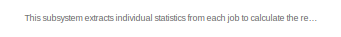
[diagram: System/Reward Calculation\n/individual_rewards - part 1/4, top right region]
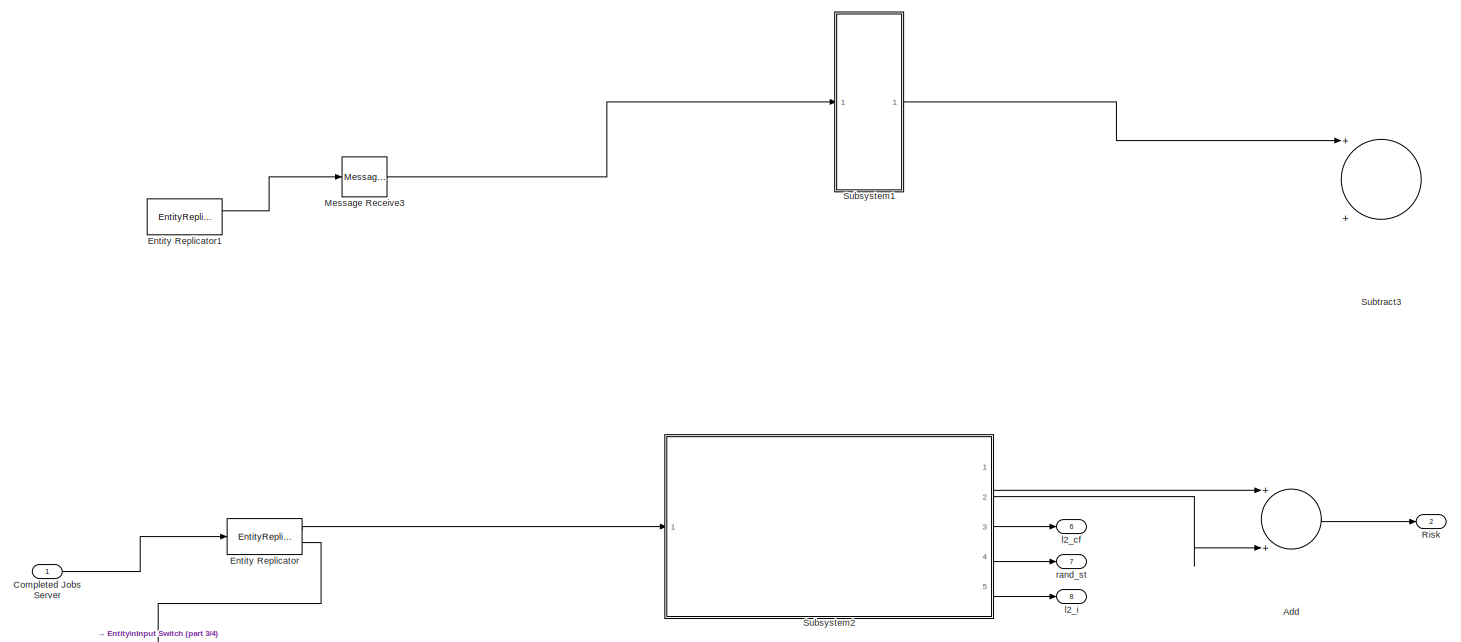
[diagram: System/Reward Calculation\n/individual_rewards - part 2/4, full width, top band]
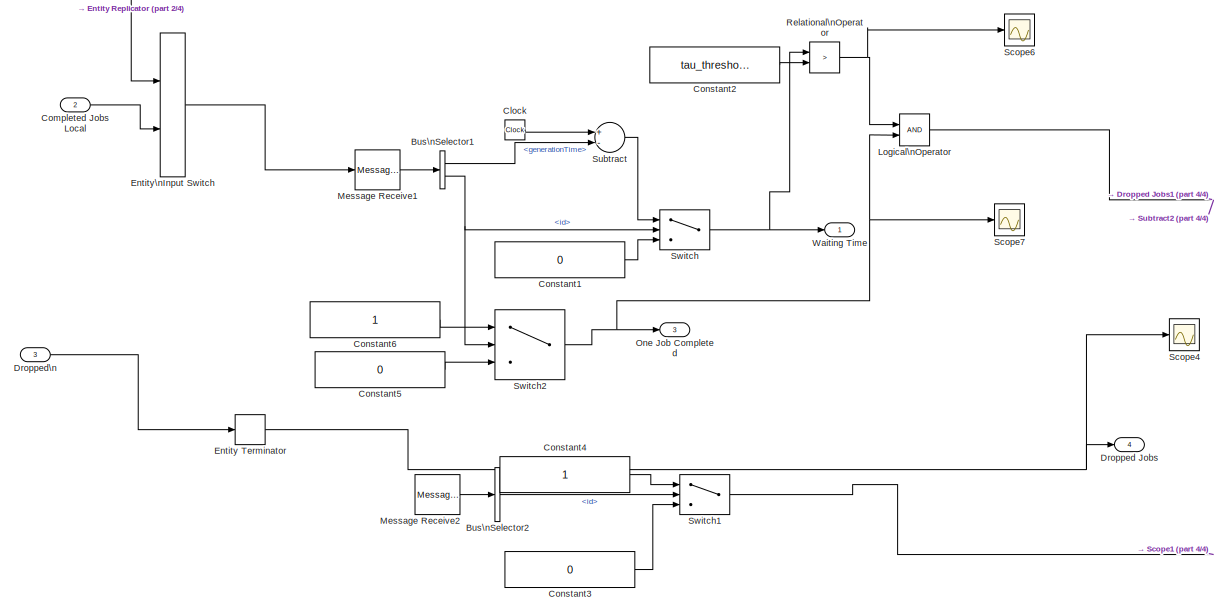
[diagram: System/Reward Calculation\n/individual_rewards - part 3/4, bottom left region]
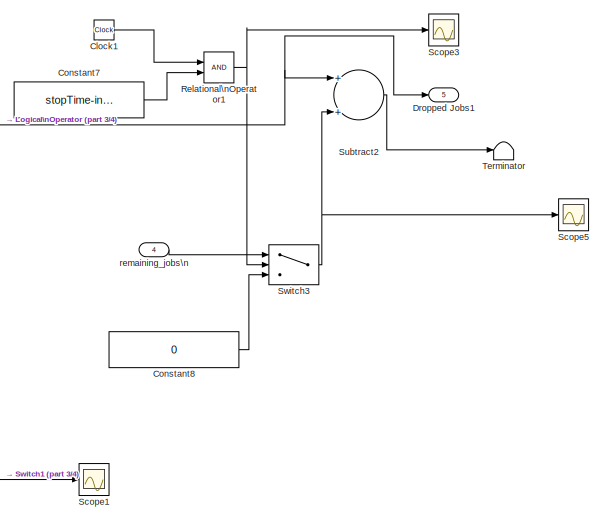
[diagram: System/Reward Calculation\n/individual_rewards - part 4/4, bottom right region]
BLOCK [SubSystem] System/Reward Calculation\n/individual_rewards
  Ports = [4, 8]
  RequestExecContextInheritance = off
  SID = 237
BLOCK [Sum] System/Reward Calculation\n/individual_rewards/Add
  InputSameDT = off
  OutDataTypeStr = Inherit: Inherit via internal rule
  Ports = [2, 1]
  SID = 615
  SaturateOnIntegerOverflow = off
BLOCK [BusSelector] System/Reward Calculation\n/individual_rewards/Bus\nSelector1
  OutputAsBus = off
  OutputSignals = generationTime,id
  Ports = [1, 2]
  SID = 241
BLOCK [BusSelector] System/Reward Calculation\n/individual_rewards/Bus\nSelector2
  Commented = on
  OutputAsBus = off
  OutputSignals = id
  Ports = [1, 1]
  SID = 648
BLOCK [Clock] System/Reward Calculation\n/individual_rewards/Clock
  Decimation = 1/sample_time
  SID = 242
BLOCK [Clock] System/Reward Calculation\n/individual_rewards/Clock1
  Decimation = 1/sample_time
  SID = 884
BLOCK [Inport] System/Reward Calculation\n/individual_rewards/Completed Jobs Local
  IconDisplay = Port number
  Port = 2
  SID = 239
BLOCK [Inport] System/Reward Calculation\n/individual_rewards/Completed Jobs Server
  IconDisplay = Port number
  SID = 238
BLOCK [Constant] System/Reward Calculation\n/individual_rewards/Constant1
  SID = 243
  Value = 0
BLOCK [Constant] System/Reward Calculation\n/individual_rewards/Constant2
  SID = 244
  Value = tau_threshold
BLOCK [Constant] System/Reward Calculation\n/individual_rewards/Constant3
  Commented = on
  SID = 651
  Value = 0
BLOCK [Constant] System/Reward Calculation\n/individual_rewards/Constant4
  Commented = on
  SID = 652
BLOCK [Constant] System/Reward Calculation\n/individual_rewards/Constant5
  SID = 245
  Value = 0
BLOCK [Constant] System/Reward Calculation\n/individual_rewards/Constant6
  SID = 246
BLOCK [Constant] System/Reward Calculation\n/individual_rewards/Constant7
  SID = 885
  Value = stopTime-interval
BLOCK [Constant] System/Reward Calculation\n/individual_rewards/Constant8
  SID = 886
  Value = 0
BLOCK [Outport] System/Reward Calculation\n/individual_rewards/Dropped Jobs
  IconDisplay = Port number
  Port = 4
  SID = 328
  VectorParamsAs1DForOutWhenUnconnected = on
BLOCK [Outport] System/Reward Calculation\n/individual_rewards/Dropped Jobs1
  IconDisplay = Port number
  Port = 5
  SID = 892
  VectorParamsAs1DForOutWhenUnconnected = on
BLOCK [Inport] System/Reward Calculation\n/individual_rewards/Dropped\n
  IconDisplay = Port number
  Port = 3
  SID = 649
BLOCK [EntityReplicator] System/Reward Calculation\n/individual_rewards/Entity Replicator
  InputPortMap = u0
  InputPortMessageModes = m
  OutputPortMap = o0,o1
  OutputPortMessageModes = m,m
  Ports = [1, 2]
  SID = 248
BLOCK [EntityReplicator] System/Reward Calculation\n/individual_rewards/Entity Replicator1
  Commented = on
  InputPortMap = u0
  InputPortMessageModes = m
  OutputPortMap = o0,o1
  OutputPortMessageModes = m,m
  Ports = [1, 2]
  SID = 249
BLOCK [EntityTerminator] System/Reward Calculation\n/individual_rewards/Entity Terminator
  InputPortMap = u0
  InputPortMessageModes = m
  NumberEntitiesArrived = on
  OutputPortMap = o0
  Ports = [1, 1]
  SID = 807
BLOCK [EntityInputSwitch] System/Reward Calculation\n/individual_rewards/Entity\nInput Switch
  InputPortMap = u1,u2
  InputPortMessageModes = m,m
  OutputPortMap = o0
  OutputPortMessageModes = m
  Ports = [2, 1]
  SID = 247
BLOCK [Logic] System/Reward Calculation\n/individual_rewards/Logical\nOperator
  AllPortsSameDT = off
  IconShape = distinctive
  OutDataTypeStr = boolean
  Ports = [2, 1]
  SID = 252
BLOCK [MessageReceive] System/Reward Calculation\n/individual_rewards/Message Receive1
  InputPortMap = u0
  InputPortMessageModes = m
  OutputPortMap = o1
  Ports = [1, 1]
  SID = 253
  SampleTime = sample_time
  ValueSourceWhenQueueIsEmpty = Use initial value
BLOCK [MessageReceive] System/Reward Calculation\n/individual_rewards/Message Receive2
  Commented = on
  InputPortMap = u0
  InputPortMessageModes = m
  OutputPortMap = o1
  Ports = [1, 1]
  SID = 647
  SampleTime = sample_time
  ValueSourceWhenQueueIsEmpty = Use initial value
BLOCK [MessageReceive] System/Reward Calculation\n/individual_rewards/Message Receive3
  Commented = on
  InputPortMap = u0
  InputPortMessageModes = m
  OutputPortMap = o1
  Ports = [1, 1]
  SID = 255
  ValueSourceWhenQueueIsEmpty = Use initial value
BLOCK [Outport] System/Reward Calculation\n/individual_rewards/One Job Completed
  IconDisplay = Port number
  Port = 3
  SID = 327
  VectorParamsAs1DForOutWhenUnconnected = on
BLOCK [RelationalOperator] System/Reward Calculation\n/individual_rewards/Relational\nOperator
  InputSameDT = off
  Operator = >
  OutDataTypeStr = boolean
  Ports = [2, 1]
  RndMeth = Simplest
  SID = 256
BLOCK [RelationalOperator] System/Reward Calculation\n/individual_rewards/Relational\nOperator1
  InputSameDT = off
  OutDataTypeStr = boolean
  Ports = [2, 1]
  RndMeth = Simplest
  SID = 887
BLOCK [Outport] System/Reward Calculation\n/individual_rewards/Risk
  IconDisplay = Port number
  Port = 2
  SID = 326
  VectorParamsAs1DForOutWhenUnconnected = on
BLOCK [Scope] System/Reward Calculation\n/individual_rewards/Scope1
  Commented = on
  Floating = off
  NumInputPorts = 1
  Ports = [1]
  SID = 662
  ScopeSpecificationString = Simulink.scopes.TimeScopeBlockCfg('CurrentConfiguration', extmgr.ConfigurationSet(extmgr.Configuration('Core','General UI',true),extmgr.Configuration('Core','Source UI',true),extmgr.Configuration('Sources','WiredSimulink',true,'DataLoggingVariableName','ScopeData5'),extmgr.Configuration('Visuals','Time Domain',true,'SerializedDisplays',{struct('MinYLimReal','-0.125','MaxYLimReal','1.125','YLabelRe...<+1642ch>
BLOCK [Scope] System/Reward Calculation\n/individual_rewards/Scope3
  Floating = off
  NumInputPorts = 1
  Ports = [1]
  SID = 888
  ScopeSpecificationString = Simulink.scopes.TimeScopeBlockCfg('CurrentConfiguration', extmgr.ConfigurationSet(extmgr.Configuration('Core','General UI',true),extmgr.Configuration('Core','Source UI',true),extmgr.Configuration('Sources','WiredSimulink',true,'DataLoggingVariableName','ScopeData1'),extmgr.Configuration('Visuals','Time Domain',true,'SerializedDisplays',{struct('MinYLimReal','-0.125','MaxYLimReal','1.125','YLabelRe...<+1653ch>
BLOCK [Scope] System/Reward Calculation\n/individual_rewards/Scope4
  Floating = off
  NumInputPorts = 1
  Ports = [1]
  SID = 848
  ScopeSpecificationString = Simulink.scopes.TimeScopeBlockCfg('CurrentConfiguration', extmgr.ConfigurationSet(extmgr.Configuration('Core','General UI',true),extmgr.Configuration('Core','Source UI',true),extmgr.Configuration('Sources','WiredSimulink',true,'DataLoggingVariableName','ScopeData1'),extmgr.Configuration('Visuals','Time Domain',true,'SerializedDisplays',{struct('MinYLimReal','3.875','MaxYLimReal','5.125','YLabelRea...<+1646ch>
BLOCK [Scope] System/Reward Calculation\n/individual_rewards/Scope5
  Floating = off
  NumInputPorts = 1
  Ports = [1]
  SID = 889
  ScopeSpecificationString = Simulink.scopes.TimeScopeBlockCfg('CurrentConfiguration', extmgr.ConfigurationSet(extmgr.Configuration('Core','General UI',true),extmgr.Configuration('Core','Source UI',true),extmgr.Configuration('Sources','WiredSimulink',true,'DataLoggingVariableName','ScopeData2'),extmgr.Configuration('Visuals','Time Domain',true,'SerializedDisplays',{struct('MinYLimReal','-2.625','MaxYLimReal','23.625','YLabelR...<+1642ch>
BLOCK [Scope] System/Reward Calculation\n/individual_rewards/Scope6
  Floating = off
  NumInputPorts = 1
  Ports = [1]
  SID = 923
  ScopeSpecificationString = Simulink.scopes.TimeScopeBlockCfg('CurrentConfiguration', extmgr.ConfigurationSet(extmgr.Configuration('Core','General UI',true),extmgr.Configuration('Core','Source UI',true),extmgr.Configuration('Sources','WiredSimulink',true,'DataLoggingVariableName','ScopeData4'),extmgr.Configuration('Visuals','Time Domain',true,'SerializedDisplays',{struct('MinYLimReal','-2.625','MaxYLimReal','23.625','YLabelR...<+1642ch>
BLOCK [Scope] System/Reward Calculation\n/individual_rewards/Scope7
  Floating = off
  NumInputPorts = 1
  Ports = [1]
  SID = 924
  ScopeSpecificationString = Simulink.scopes.TimeScopeBlockCfg('CurrentConfiguration', extmgr.ConfigurationSet(extmgr.Configuration('Core','General UI',true),extmgr.Configuration('Core','Source UI',true),extmgr.Configuration('Sources','WiredSimulink',true,'DataLoggingVariableName','ScopeData5'),extmgr.Configuration('Visuals','Time Domain',true,'SerializedDisplays',{struct('MinYLimReal','-2.625','MaxYLimReal','23.625','YLabelR...<+1642ch>
BLOCK [SubSystem] System/Reward Calculation\n/individual_rewards/Subsystem1
  Commented = on
  Ports = [1, 1]
  RequestExecContextInheritance = off
  SID = 257
BLOCK [BusSelector] System/Reward Calculation\n/individual_rewards/Subsystem1/Bus\nSelector2
  OutputAsBus = off
  OutputSignals = encryptionLevel,integrityLevel,id
  Ports = [1, 3]
  SID = 259
BLOCK [Constant] System/Reward Calculation\n/individual_rewards/Subsystem1/Constant4
  SID = 260
  Value = 0
BLOCK [Gain] System/Reward Calculation\n/individual_rewards/Subsystem1/Gain
  OutDataTypeStr = Inherit: Inherit via internal rule
  ParamDataTypeStr = Inherit: Inherit via internal rule
  SID = 261
  SaturateOnIntegerOverflow = off
BLOCK [Inport] System/Reward Calculation\n/individual_rewards/Subsystem1/In2
  IconDisplay = Port number
  SID = 258
BLOCK [Outport] System/Reward Calculation\n/individual_rewards/Subsystem1/Out1
  IconDisplay = Port number
  SID = 288
  VectorParamsAs1DForOutWhenUnconnected = on
BLOCK [SubSystem] System/Reward Calculation\n/individual_rewards/Subsystem1/Subsystem
  Ports = [2, 1]
  RequestExecContextInheritance = off
  SID = 262
BLOCK [Constant] System/Reward Calculation\n/individual_rewards/Subsystem1/Subsystem/Constant8
  SID = 265
BLOCK [Constant] System/Reward Calculation\n/individual_rewards/Subsystem1/Subsystem/Constant9
  SID = 266
BLOCK [Product] System/Reward Calculation\n/individual_rewards/Subsystem1/Subsystem/Divide3
  InputSameDT = off
  Inputs = **
  OutDataTypeStr = Inherit: Inherit via internal rule
  Ports = [2, 1]
  RndMeth = Floor
  SID = 267
  SaturateOnIntegerOverflow = off
BLOCK [Inport] System/Reward Calculation\n/individual_rewards/Subsystem1/Subsystem/Lambda
  IconDisplay = Port number
  SID = 263
BLOCK [Math] System/Reward Calculation\n/individual_rewards/Subsystem1/Subsystem/Log2
  Ports = [1, 1]
  SID = 268
BLOCK [Outport] System/Reward Calculation\n/individual_rewards/Subsystem1/Subsystem/P
  IconDisplay = Port number
  SID = 272
  VectorParamsAs1DForOutWhenUnconnected = on
BLOCK [Inport] System/Reward Calculation\n/individual_rewards/Subsystem1/Subsystem/SecurityLevel
  IconDisplay = Port number
  Port = 2
  SID = 264
BLOCK [Sum] System/Reward Calculation\n/individual_rewards/Subsystem1/Subsystem/Subtract3
  InputSameDT = off
  Inputs = +-
  OutDataTypeStr = Inherit: Inherit via internal rule
  Ports = [2, 1]
  SID = 269
  SaturateOnIntegerOverflow = off
BLOCK [Sum] System/Reward Calculation\n/individual_rewards/Subsystem1/Subsystem/Subtract4
  InputSameDT = off
  Inputs = +-
  OutDataTypeStr = Inherit: Inherit via internal rule
  Ports = [2, 1]
  SID = 270
  SaturateOnIntegerOverflow = off
BLOCK [UnaryMinus] System/Reward Calculation\n/individual_rewards/Subsystem1/Subsystem/Unary Minus
  SID = 271
BLOCK [SubSystem] System/Reward Calculation\n/individual_rewards/Subsystem1/Subsystem1
  Ports = [2, 1]
  RequestExecContextInheritance = off
  SID = 273
BLOCK [Constant] System/Reward Calculation\n/individual_rewards/Subsystem1/Subsystem1/Constant8
  SID = 276
BLOCK [Constant] System/Reward Calculation\n/individual_rewards/Subsystem1/Subsystem1/Constant9
  SID = 277
BLOCK [Product] System/Reward Calculation\n/individual_rewards/Subsystem1/Subsystem1/Divide3
  InputSameDT = off
  Inputs = **
  OutDataTypeStr = Inherit: Inherit via internal rule
  Ports = [2, 1]
  RndMeth = Floor
  SID = 278
  SaturateOnIntegerOverflow = off
BLOCK [Inport] System/Reward Calculation\n/individual_rewards/Subsystem1/Subsystem1/Lambda
  IconDisplay = Port number
  SID = 274
BLOCK [Math] System/Reward Calculation\n/individual_rewards/Subsystem1/Subsystem1/Log2
  Ports = [1, 1]
  SID = 279
BLOCK [Outport] System/Reward Calculation\n/individual_rewards/Subsystem1/Subsystem1/P
  IconDisplay = Port number
  SID = 283
  VectorParamsAs1DForOutWhenUnconnected = on
BLOCK [Inport] System/Reward Calculation\n/individual_rewards/Subsystem1/Subsystem1/SecurityLevel
  IconDisplay = Port number
  Port = 2
  SID = 275
BLOCK [Sum] System/Reward Calculation\n/individual_rewards/Subsystem1/Subsystem1/Subtract3
  InputSameDT = off
  Inputs = +-
  OutDataTypeStr = Inherit: Inherit via internal rule
  Ports = [2, 1]
  SID = 280
  SaturateOnIntegerOverflow = off
BLOCK [Sum] System/Reward Calculation\n/individual_rewards/Subsystem1/Subsystem1/Subtract4
  InputSameDT = off
  Inputs = +-
  OutDataTypeStr = Inherit: Inherit via internal rule
  Ports = [2, 1]
  SID = 281
  SaturateOnIntegerOverflow = off
BLOCK [UnaryMinus] System/Reward Calculation\n/individual_rewards/Subsystem1/Subsystem1/Unary Minus
  SID = 282
BLOCK [Sum] System/Reward Calculation\n/individual_rewards/Subsystem1/Subtract3
  InputSameDT = off
  OutDataTypeStr = Inherit: Inherit via internal rule
  Ports = [2, 1]
  SID = 284
  SaturateOnIntegerOverflow = off
BLOCK [Switch] System/Reward Calculation\n/individual_rewards/Subsystem1/Switch5
  Criteria = u2 > Threshold
  InputSameDT = off
  SID = 285
  SaturateOnIntegerOverflow = off
BLOCK [Constant] System/Reward Calculation\n/individual_rewards/Subsystem1/alpha1
  SID = 286
  Value = l1_cf
BLOCK [Constant] System/Reward Calculation\n/individual_rewards/Subsystem1/alpha2
  SID = 287
  Value = l1_ig
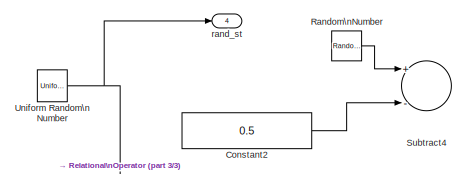
[diagram: System/Reward Calculation\n/individual_rewards/Subsystem2 - part 1/3, top right region]
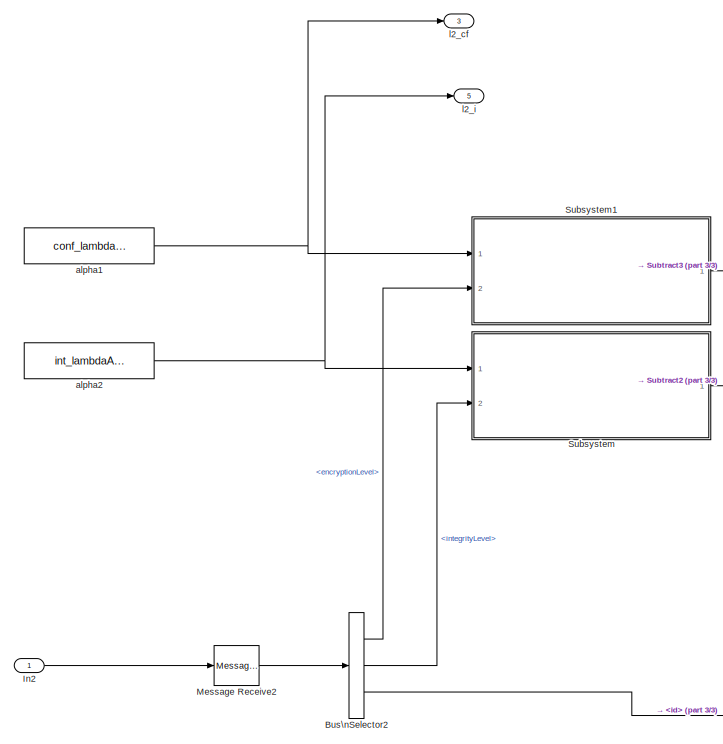
[diagram: System/Reward Calculation\n/individual_rewards/Subsystem2 - part 2/3, left side, full height]
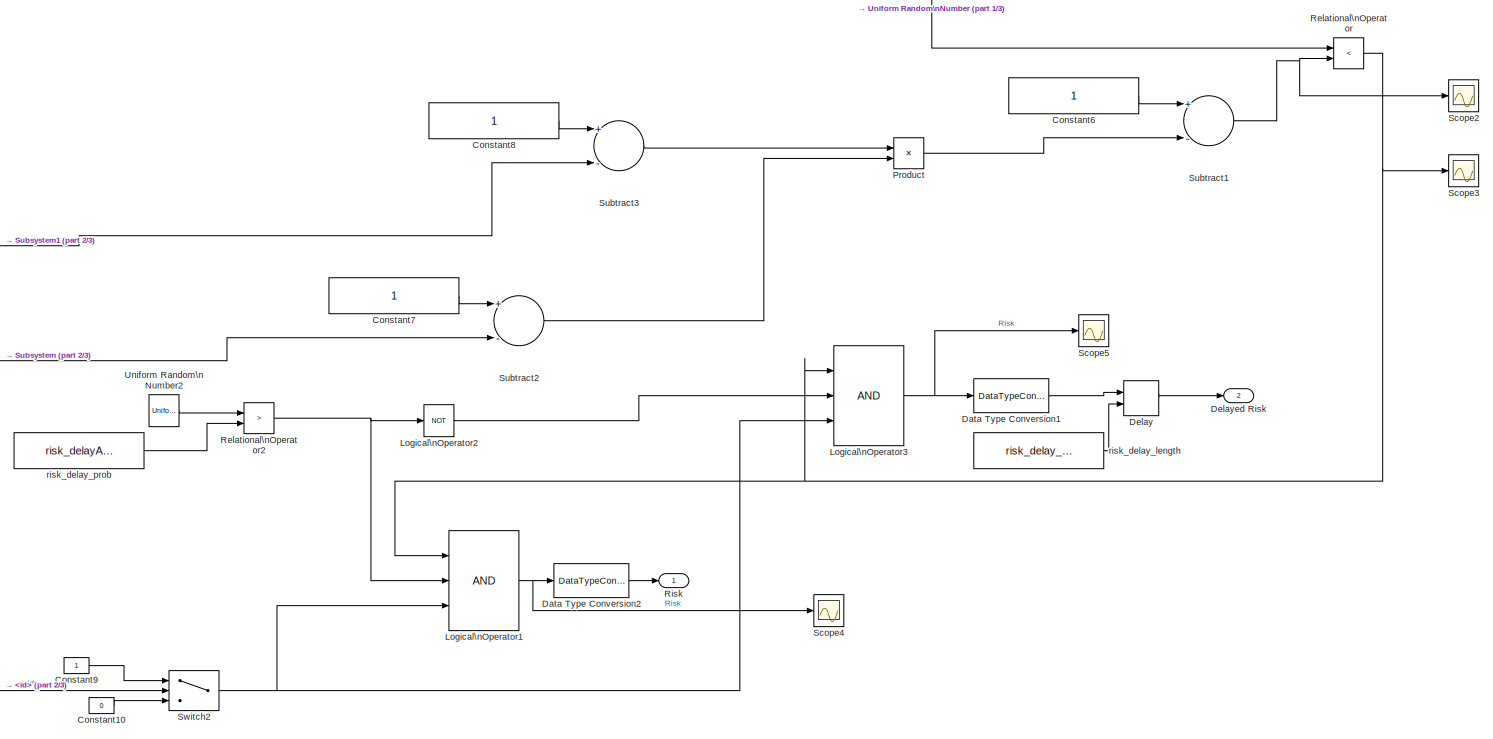
[diagram: System/Reward Calculation\n/individual_rewards/Subsystem2 - part 3/3, center side, full height]
BLOCK [SubSystem] System/Reward Calculation\n/individual_rewards/Subsystem2
  Ports = [1, 5]
  RequestExecContextInheritance = off
  SID = 289
BLOCK [BusSelector] System/Reward Calculation\n/individual_rewards/Subsystem2/Bus\nSelector2
  OutputAsBus = off
  OutputSignals = encryptionLevel,integrityLevel,id
  Ports = [1, 3]
  SID = 291
BLOCK [Constant] System/Reward Calculation\n/individual_rewards/Subsystem2/Constant10
  SID = 589
  Value = 0
BLOCK [Constant] System/Reward Calculation\n/individual_rewards/Subsystem2/Constant2
  Commented = on
  SID = 830
  Value = 0.5
BLOCK [Constant] System/Reward Calculation\n/individual_rewards/Subsystem2/Constant6
  SID = 582
BLOCK [Constant] System/Reward Calculation\n/individual_rewards/Subsystem2/Constant7
  SID = 584
BLOCK [Constant] System/Reward Calculation\n/individual_rewards/Subsystem2/Constant8
  SID = 579
BLOCK [Constant] System/Reward Calculation\n/individual_rewards/Subsystem2/Constant9
  SID = 588
BLOCK [DataTypeConversion] System/Reward Calculation\n/individual_rewards/Subsystem2/Data Type Conversion1
  OutDataTypeStr = double
  RndMeth = Floor
  SID = 616
  SaturateOnIntegerOverflow = off
BLOCK [DataTypeConversion] System/Reward Calculation\n/individual_rewards/Subsystem2/Data Type Conversion2
  OutDataTypeStr = double
  RndMeth = Floor
  SID = 858
  SaturateOnIntegerOverflow = off
BLOCK [Delay] System/Reward Calculation\n/individual_rewards/Subsystem2/Delay
  DelayLength = interval
  DelayLengthSource = Input port
  InitialCondition = 0
  InputPortMap = u0,p1
  Ports = [2, 1]
  SID = 552
BLOCK [Outport] System/Reward Calculation\n/individual_rewards/Subsystem2/Delayed Risk
  IconDisplay = Port number
  Port = 2
  SID = 560
  VectorParamsAs1DForOutWhenUnconnected = on
BLOCK [Inport] System/Reward Calculation\n/individual_rewards/Subsystem2/In2
  IconDisplay = Port number
  SID = 290
BLOCK [Logic] System/Reward Calculation\n/individual_rewards/Subsystem2/Logical\nOperator1
  AllPortsSameDT = off
  Inputs = 3
  OutDataTypeStr = boolean
  Ports = [3, 1]
  SID = 553
BLOCK [Logic] System/Reward Calculation\n/individual_rewards/Subsystem2/Logical\nOperator2
  AllPortsSameDT = off
  Operator = NOT
  OutDataTypeStr = boolean
  Ports = [1, 1]
  SID = 554
BLOCK [Logic] System/Reward Calculation\n/individual_rewards/Subsystem2/Logical\nOperator3
  AllPortsSameDT = off
  Inputs = 3
  OutDataTypeStr = boolean
  Ports = [3, 1]
  SID = 612
BLOCK [MessageReceive] System/Reward Calculation\n/individual_rewards/Subsystem2/Message Receive2
  InputPortMap = u0
  InputPortMessageModes = m
  OutputPortMap = o1
  Ports = [1, 1]
  SID = 254
  SampleTime = 0.1
  ValueSourceWhenQueueIsEmpty = Use initial value
BLOCK [Product] System/Reward Calculation\n/individual_rewards/Subsystem2/Product
  InputSameDT = off
  OutDataTypeStr = Inherit: Inherit via internal rule
  Ports = [2, 1]
  RndMeth = Floor
  SID = 581
  SaturateOnIntegerOverflow = off
BLOCK [RandomNumber] System/Reward Calculation\n/individual_rewards/Subsystem2/Random\nNumber
  Commented = on
  SID = 832
  SampleTime = sample_time
  Variance = 0.1
BLOCK [RelationalOperator] System/Reward Calculation\n/individual_rewards/Subsystem2/Relational\nOperator
  InputSameDT = off
  Operator = <
  OutDataTypeStr = boolean
  Ports = [2, 1]
  RndMeth = Simplest
  SID = 536
BLOCK [RelationalOperator] System/Reward Calculation\n/individual_rewards/Subsystem2/Relational\nOperator2
  InputSameDT = off
  Operator = >
  OutDataTypeStr = boolean
  Ports = [2, 1]
  RndMeth = Simplest
  SID = 543
BLOCK [Outport] System/Reward Calculation\n/individual_rewards/Subsystem2/Risk
  IconDisplay = Port number
  SID = 559
  VectorParamsAs1DForOutWhenUnconnected = on
BLOCK [Scope] System/Reward Calculation\n/individual_rewards/Subsystem2/Scope2
  Floating = off
  NumInputPorts = 1
  Ports = [1]
  SID = 855
  ScopeSpecificationString = Simulink.scopes.TimeScopeBlockCfg('CurrentConfiguration', extmgr.ConfigurationSet(extmgr.Configuration('Core','General UI',true),extmgr.Configuration('Core','Source UI',true),extmgr.Configuration('Sources','WiredSimulink',true,'DataLoggingVariableName','ScopeData2'),extmgr.Configuration('Visuals','Time Domain',true,'SerializedDisplays',{struct('MinYLimReal','0.85021','MaxYLimReal','1.05021','YLabe...<+1654ch>
BLOCK [Scope] System/Reward Calculation\n/individual_rewards/Subsystem2/Scope3
  Floating = off
  NumInputPorts = 1
  Ports = [1]
  SID = 856
  ScopeSpecificationString = Simulink.scopes.TimeScopeBlockCfg('CurrentConfiguration', extmgr.ConfigurationSet(extmgr.Configuration('Core','General UI',true),extmgr.Configuration('Core','Source UI',true),extmgr.Configuration('Sources','WiredSimulink',true,'DataLoggingVariableName','ScopeData3'),extmgr.Configuration('Visuals','Time Domain',true,'SerializedDisplays',{struct('MinYLimReal','-0.125','MaxYLimReal','1.125','YLabelRe...<+1647ch>
BLOCK [Scope] System/Reward Calculation\n/individual_rewards/Subsystem2/Scope4
  Floating = off
  NumInputPorts = 1
  Ports = [1]
  SID = 854
  ScopeSpecificationString = Simulink.scopes.TimeScopeBlockCfg('CurrentConfiguration', extmgr.ConfigurationSet(extmgr.Configuration('Core','General UI',true),extmgr.Configuration('Core','Source UI',true),extmgr.Configuration('Sources','WiredSimulink',true,'DataLoggingVariableName','ScopeData1'),extmgr.Configuration('Visuals','Time Domain',true,'SerializedDisplays',{struct('MinYLimReal','-0.125','MaxYLimReal','1.125','YLabelRe...<+1641ch>
BLOCK [Scope] System/Reward Calculation\n/individual_rewards/Subsystem2/Scope5
  Floating = off
  NumInputPorts = 1
  Ports = [1]
  SID = 859
  ScopeSpecificationString = Simulink.scopes.TimeScopeBlockCfg('CurrentConfiguration', extmgr.ConfigurationSet(extmgr.Configuration('Core','General UI',true),extmgr.Configuration('Core','Source UI',true),extmgr.Configuration('Sources','WiredSimulink',true,'DataLoggingVariableName','ScopeData4'),extmgr.Configuration('Visuals','Time Domain',true,'SerializedDisplays',{struct('MinYLimReal','-0.125','MaxYLimReal','1.125','YLabelRe...<+1639ch>
BLOCK [SubSystem] System/Reward Calculation\n/individual_rewards/Subsystem2/Subsystem
  Ports = [2, 1]
  RequestExecContextInheritance = off
  SID = 294
BLOCK [Constant] System/Reward Calculation\n/individual_rewards/Subsystem2/Subsystem/Constant8
  SID = 297
BLOCK [Constant] System/Reward Calculation\n/individual_rewards/Subsystem2/Subsystem/Constant9
  SID = 298
BLOCK [Product] System/Reward Calculation\n/individual_rewards/Subsystem2/Subsystem/Divide3
  InputSameDT = off
  Inputs = **
  OutDataTypeStr = Inherit: Inherit via internal rule
  Ports = [2, 1]
  RndMeth = Floor
  SID = 299
  SaturateOnIntegerOverflow = off
BLOCK [Inport] System/Reward Calculation\n/individual_rewards/Subsystem2/Subsystem/Lambda
  IconDisplay = Port number
  SID = 295
BLOCK [Math] System/Reward Calculation\n/individual_rewards/Subsystem2/Subsystem/Log2
  Ports = [1, 1]
  SID = 300
BLOCK [Outport] System/Reward Calculation\n/individual_rewards/Subsystem2/Subsystem/P
  IconDisplay = Port number
  SID = 304
  VectorParamsAs1DForOutWhenUnconnected = on
BLOCK [Inport] System/Reward Calculation\n/individual_rewards/Subsystem2/Subsystem/SecurityLevel
  IconDisplay = Port number
  Port = 2
  SID = 296
BLOCK [Sum] System/Reward Calculation\n/individual_rewards/Subsystem2/Subsystem/Subtract3
  InputSameDT = off
  Inputs = +-
  OutDataTypeStr = Inherit: Inherit via internal rule
  Ports = [2, 1]
  SID = 301
  SaturateOnIntegerOverflow = off
BLOCK [Sum] System/Reward Calculation\n/individual_rewards/Subsystem2/Subsystem/Subtract4
  InputSameDT = off
  Inputs = +-
  OutDataTypeStr = Inherit: Inherit via internal rule
  Ports = [2, 1]
  SID = 302
  SaturateOnIntegerOverflow = off
BLOCK [UnaryMinus] System/Reward Calculation\n/individual_rewards/Subsystem2/Subsystem/Unary Minus
  SID = 303
BLOCK [SubSystem] System/Reward Calculation\n/individual_rewards/Subsystem2/Subsystem1
  Ports = [2, 1]
  RequestExecContextInheritance = off
  SID = 305
BLOCK [Constant] System/Reward Calculation\n/individual_rewards/Subsystem2/Subsystem1/Constant8
  SID = 308
BLOCK [Constant] System/Reward Calculation\n/individual_rewards/Subsystem2/Subsystem1/Constant9
  SID = 309
BLOCK [Product] System/Reward Calculation\n/individual_rewards/Subsystem2/Subsystem1/Divide3
  InputSameDT = off
  Inputs = **
  OutDataTypeStr = Inherit: Inherit via internal rule
  Ports = [2, 1]
  RndMeth = Floor
  SID = 310
  SaturateOnIntegerOverflow = off
BLOCK [Inport] System/Reward Calculation\n/individual_rewards/Subsystem2/Subsystem1/Lambda
  IconDisplay = Port number
  SID = 306
BLOCK [Math] System/Reward Calculation\n/individual_rewards/Subsystem2/Subsystem1/Log2
  Ports = [1, 1]
  SID = 311
BLOCK [Outport] System/Reward Calculation\n/individual_rewards/Subsystem2/Subsystem1/P
  IconDisplay = Port number
  SID = 315
  VectorParamsAs1DForOutWhenUnconnected = on
BLOCK [Inport] System/Reward Calculation\n/individual_rewards/Subsystem2/Subsystem1/SecurityLevel
  IconDisplay = Port number
  Port = 2
  SID = 307
BLOCK [Sum] System/Reward Calculation\n/individual_rewards/Subsystem2/Subsystem1/Subtract3
  InputSameDT = off
  Inputs = +-
  OutDataTypeStr = Inherit: Inherit via internal rule
  Ports = [2, 1]
  SID = 312
  SaturateOnIntegerOverflow = off
BLOCK [Sum] System/Reward Calculation\n/individual_rewards/Subsystem2/Subsystem1/Subtract4
  InputSameDT = off
  Inputs = +-
  OutDataTypeStr = Inherit: Inherit via internal rule
  Ports = [2, 1]
  SID = 313
  SaturateOnIntegerOverflow = off
BLOCK [UnaryMinus] System/Reward Calculation\n/individual_rewards/Subsystem2/Subsystem1/Unary Minus
  SID = 314
BLOCK [Sum] System/Reward Calculation\n/individual_rewards/Subsystem2/Subtract1
  InputSameDT = off
  Inputs = +-
  OutDataTypeStr = Inherit: Inherit via internal rule
  Ports = [2, 1]
  SID = 583
  SaturateOnIntegerOverflow = off
BLOCK [Sum] System/Reward Calculation\n/individual_rewards/Subsystem2/Subtract2
  InputSameDT = off
  Inputs = +-
  OutDataTypeStr = Inherit: Inherit via internal rule
  Ports = [2, 1]
  SID = 585
  SaturateOnIntegerOverflow = off
BLOCK [Sum] System/Reward Calculation\n/individual_rewards/Subsystem2/Subtract3
  InputSameDT = off
  Inputs = +-
  OutDataTypeStr = Inherit: Inherit via internal rule
  Ports = [2, 1]
  SID = 580
  SaturateOnIntegerOverflow = off
BLOCK [Sum] System/Reward Calculation\n/individual_rewards/Subsystem2/Subtract4
  Commented = on
  InputSameDT = off
  Inputs = +-
  OutDataTypeStr = Inherit: Inherit via internal rule
  Ports = [2, 1]
  SID = 831
  SaturateOnIntegerOverflow = off
BLOCK [Switch] System/Reward Calculation\n/individual_rewards/Subsystem2/Switch2
  Criteria = u2 > Threshold
  InputSameDT = off
  SID = 587
  SaturateOnIntegerOverflow = off
BLOCK [UniformRandomNumber] System/Reward Calculation\n/individual_rewards/Subsystem2/Uniform Random\nNumber
  Minimum = 0
  SID = 535
  SampleTime = interval
BLOCK [UniformRandomNumber] System/Reward Calculation\n/individual_rewards/Subsystem2/Uniform Random\nNumber2
  Minimum = 0
  SID = 542
  SampleTime = 0.1
  Seed = 1
BLOCK [Constant] System/Reward Calculation\n/individual_rewards/Subsystem2/alpha1
  SID = 318
  Value = conf_lambdaArg
BLOCK [Constant] System/Reward Calculation\n/individual_rewards/Subsystem2/alpha2
  SID = 319
  Value = int_lambdaArg
BLOCK [Outport] System/Reward Calculation\n/individual_rewards/Subsystem2/l2_cf
  IconDisplay = Port number
  Port = 3
  SID = 926
  VectorParamsAs1DForOutWhenUnconnected = on
BLOCK [Outport] System/Reward Calculation\n/individual_rewards/Subsystem2/l2_i
  IconDisplay = Port number
  Port = 5
  SID = 945
  VectorParamsAs1DForOutWhenUnconnected = on
BLOCK [Outport] System/Reward Calculation\n/individual_rewards/Subsystem2/rand_st
  IconDisplay = Port number
  Port = 4
  SID = 929
  VectorParamsAs1DForOutWhenUnconnected = on
BLOCK [Constant] System/Reward Calculation\n/individual_rewards/Subsystem2/risk_delay_length
  SID = 882
  Value = risk_delay_lengthArg
BLOCK [Constant] System/Reward Calculation\n/individual_rewards/Subsystem2/risk_delay_prob
  SID = 544
  Value = risk_delayArg
BLOCK [Sum] System/Reward Calculation\n/individual_rewards/Subtract
  InputSameDT = off
  Inputs = +-
  OutDataTypeStr = Inherit: Inherit via internal rule
  Ports = [2, 1]
  SID = 321
  SaturateOnIntegerOverflow = off
BLOCK [Sum] System/Reward Calculation\n/individual_rewards/Subtract2
  InputSameDT = off
  OutDataTypeStr = Inherit: Inherit via internal rule
  Ports = [2, 1]
  SID = 890
  SaturateOnIntegerOverflow = off
BLOCK [Sum] System/Reward Calculation\n/individual_rewards/Subtract3
  Commented = on
  InputSameDT = off
  OutDataTypeStr = Inherit: Inherit via internal rule
  Ports = [2, 1]
  SID = 322
  SaturateOnIntegerOverflow = off
BLOCK [Switch] System/Reward Calculation\n/individual_rewards/Switch
  Criteria = u2 > Threshold
  InputSameDT = off
  SID = 323
  SaturateOnIntegerOverflow = off
BLOCK [Switch] System/Reward Calculation\n/individual_rewards/Switch1
  Commented = on
  Criteria = u2 > Threshold
  InputSameDT = off
  SID = 650
  SaturateOnIntegerOverflow = off
BLOCK [Switch] System/Reward Calculation\n/individual_rewards/Switch2
  Criteria = u2 > Threshold
  InputSameDT = off
  SID = 324
  SaturateOnIntegerOverflow = off
BLOCK [Switch] System/Reward Calculation\n/individual_rewards/Switch3
  Criteria = u2 > Threshold
  InputSameDT = off
  SID = 891
  SaturateOnIntegerOverflow = off
BLOCK [Terminator] System/Reward Calculation\n/individual_rewards/Terminator
  SID = 904
BLOCK [Outport] System/Reward Calculation\n/individual_rewards/Waiting Time
  IconDisplay = Port number
  SID = 325
  VectorParamsAs1DForOutWhenUnconnected = on
BLOCK [Outport] System/Reward Calculation\n/individual_rewards/l2_cf
  IconDisplay = Port number
  Port = 6
  SID = 927
  VectorParamsAs1DForOutWhenUnconnected = on
BLOCK [Outport] System/Reward Calculation\n/individual_rewards/l2_i
  IconDisplay = Port number
  Port = 8
  SID = 946
  VectorParamsAs1DForOutWhenUnconnected = on
BLOCK [Outport] System/Reward Calculation\n/individual_rewards/rand_st
  IconDisplay = Port number
  Port = 7
  SID = 930
  VectorParamsAs1DForOutWhenUnconnected = on
BLOCK [Inport] System/Reward Calculation\n/individual_rewards/remaining_jobs\n
  IconDisplay = Port number
  Port = 4
  SID = 883
BLOCK [Outport] System/Reward Calculation\n/l2_cf
  IconDisplay = Port number
  Port = 2
  SID = 928
  VectorParamsAs1DForOutWhenUnconnected = on
BLOCK [Outport] System/Reward Calculation\n/l2_i
  IconDisplay = Port number
  Port = 4
  SID = 947
  VectorParamsAs1DForOutWhenUnconnected = on
BLOCK [Outport] System/Reward Calculation\n/rand_st
  IconDisplay = Port number
  Port = 3
  SID = 931
  VectorParamsAs1DForOutWhenUnconnected = on
BLOCK [Scope] System/Scope1
  Floating = off
  NumInputPorts = 1
  Ports = [1]
  SID = 844
  ScopeSpecificationString = Simulink.scopes.TimeScopeBlockCfg('CurrentConfiguration', extmgr.ConfigurationSet(extmgr.Configuration('Core','General UI',true),extmgr.Configuration('Core','Source UI',true),extmgr.Configuration('Sources','WiredSimulink',true,'DataLoggingVariableName','ScopeData2'),extmgr.Configuration('Visuals','Time Domain',true,'SerializedDisplays',{struct('MinYLimReal','-209715.2','MaxYLimReal','1887436.8','Y...<+1979ch>
BLOCK [Scope] System/Scope5
  Floating = off
  NumInputPorts = 1
  Ports = [1]
  SID = 843
  ScopeSpecificationString = Simulink.scopes.TimeScopeBlockCfg('CurrentConfiguration', extmgr.ConfigurationSet(extmgr.Configuration('Core','General UI',true),extmgr.Configuration('Core','Source UI',true),extmgr.Configuration('Sources','WiredSimulink',true,'DataLoggingVariableName','ScopeData1'),extmgr.Configuration('Visuals','Time Domain',true,'SerializedDisplays',{struct('MinYLimReal','-209715.2','MaxYLimReal','1887436.8','Y...<+1976ch>
BLOCK [SubSystem] System/Server
  AncestorBlock = library/Server
  Ports = [1, 3]
  RequestExecContextInheritance = off
  SID = 134
BLOCK [Outport] System/Server/Dropped
  IconDisplay = Port number
  Port = 3
  SID = 134:30
  VectorParamsAs1DForOutWhenUnconnected = on
BLOCK [EntityQueue] System/Server/Entity Queue
  Capacity = 10
  InputPortMap = u0
  InputPortMessageModes = m
  NumberEntitiesInBlock = on
  OutputPortMap = o1,o5
  OutputPortMessageModes = n,m
  Ports = [1, 2]
  SID = 134:3
BLOCK [EntityServer] System/Server/Entity Server
  Capacity = server_cpu_cores
  InputPortMap = u2
  InputPortMessageModes = m
  NumberEntitiesDeparted = on
  OutputPortMap = o0,o5,o9
  OutputPortMessageModes = n,n,m
  Ports = [1, 3]
  SID = 134:4
  ServiceTimeAction = % Exponential service time with rate 1\n% mean = 0.1;\n% dt   = -average_computation_time_server * log(1 - rand());\n\n% if(entity.platform==2)\n    % decryption\n   wl=Is*(entity.encryptionWorkloadPerBit*entity.size+entity.integrityWorkloadPerBit*entity.size) +entity.computeWorkloadPerBit*entity.size;\n% else\n%     wl=1;\n%     disp('I shouldn not be here');\n% end\ndt=wl/Is;
  ServiceTimeSource = MATLAB action
  Utilization = on
BLOCK [EntityOutputSwitch] System/Server/Entity\nOutput Switch1
  InputPortMap = u1
  InputPortMessageModes = m
  OutputPortMap = o0,o1
  OutputPortMessageModes = m,m
  Ports = [1, 2]
  SID = 134:29
  SwitchAttributeName = platform
BLOCK [Inport] System/Server/In1
  IconDisplay = Port number
  SID = 134:2
BLOCK [Outport] System/Server/Length\n
  IconDisplay = Port number
  SID = 134:5
  VectorParamsAs1DForOutWhenUnconnected = on
BLOCK [Outport] System/Server/Processed Jobs
  IconDisplay = Port number
  Port = 2
  SID = 134:6
  VectorParamsAs1DForOutWhenUnconnected = on
BLOCK [Scope] System/Server/Scope1
  Floating = off
  NumInputPorts = 1
  Ports = [1]
  SID = 134:28
  ScopeSpecificationString = Simulink.scopes.TimeScopeBlockCfg('CurrentConfiguration', extmgr.ConfigurationSet(extmgr.Configuration('Core','General UI',true),extmgr.Configuration('Core','Source UI',true),extmgr.Configuration('Sources','WiredSimulink',true,'DataLoggingVariableName','ScopeData2'),extmgr.Configuration('Visuals','Time Domain',true,'SerializedDisplays',{struct('MinYLimReal','-1048576.00000','MaxYLimReal','9437184....<+2000ch>
BLOCK [Scope] System/Server/Scope2
  Floating = off
  NumInputPorts = 1
  Ports = [1]
  SID = 134:31
  ScopeSpecificationString = Simulink.scopes.TimeScopeBlockCfg('CurrentConfiguration', extmgr.ConfigurationSet(extmgr.Configuration('Core','General UI',true),extmgr.Configuration('Core','Source UI',true),extmgr.Configuration('Sources','WiredSimulink',true,'DataLoggingVariableName','ScopeData1'),extmgr.Configuration('Visuals','Time Domain',true,'SerializedDisplays',{struct('MinYLimReal','-1048576.00000','MaxYLimReal','9437184....<+1900ch>
BLOCK [Scope] System/Server/Scope3
  Floating = off
  NumInputPorts = 1
  Ports = [1]
  SID = 134:32
  ScopeSpecificationString = Simulink.scopes.TimeScopeBlockCfg('CurrentConfiguration', extmgr.ConfigurationSet(extmgr.Configuration('Core','General UI',true),extmgr.Configuration('Core','Source UI',true),extmgr.Configuration('Sources','WiredSimulink',true,'DataLoggingVariableName','ScopeData3'),extmgr.Configuration('Visuals','Time Domain',true,'SerializedDisplays',{struct('MinYLimReal','0.23226','MaxYLimReal','0.54256','YLabe...<+1624ch>
BLOCK [Scope] System/Server/Scope4
  Floating = off
  NumInputPorts = 1
  Ports = [1]
  SID = 134:33
  ScopeSpecificationString = Simulink.scopes.TimeScopeBlockCfg('CurrentConfiguration', extmgr.ConfigurationSet(extmgr.Configuration('Core','General UI',true),extmgr.Configuration('Core','Source UI',true),extmgr.Configuration('Sources','WiredSimulink',true,'DataLoggingVariableName','ScopeData4'),extmgr.Configuration('Visuals','Time Domain',true,'SerializedDisplays',{struct('MinYLimReal','-0.125','MaxYLimReal','1.125','YLabelRe...<+1613ch>
BLOCK [Scope] System/Server/Scope5
  Floating = off
  NumInputPorts = 1
  Ports = [1]
  SID = 134:34
  ScopeSpecificationString = Simulink.scopes.TimeScopeBlockCfg('CurrentConfiguration', extmgr.ConfigurationSet(extmgr.Configuration('Core','General UI',true),extmgr.Configuration('Core','Source UI',true),extmgr.Configuration('Sources','WiredSimulink',true,'DataLoggingVariableName','ScopeData5'),extmgr.Configuration('Visuals','Time Domain',true,'SerializedDisplays',{struct('MinYLimReal','9.125','MaxYLimReal','87.875','YLabelRe...<+1612ch>
BLOCK [Sum] System/Subtract3
  InputSameDT = off
  OutDataTypeStr = Inherit: Inherit via internal rule
  Ports = [2, 1]
  SID = 509
  SaturateOnIntegerOverflow = off
BLOCK [Switch] System/Switch2
  Criteria = u2 > Threshold
  InputSameDT = off
  SID = 510
  SaturateOnIntegerOverflow = off
  Threshold = is_done_limit
BLOCK [UnitDelay] System/Unit Delay
  HasFrameUpgradeWarning = on
  SID = 950
  SampleTime = interval
BLOCK [Concatenate] System/Vector\nConcatenate1
  NumInputs = 8
  Ports = [8, 1]
  SID = 353
BLOCK [Constant] System/avg_users
  SID = 158
  Value = random_seedArg
BLOCK [Outport] System/is_done
  IconDisplay = Port number
  Port = 3
  SID = 517
  VectorParamsAs1DForOutWhenUnconnected = on
BLOCK [Constant] System/lower_limit
  SID = 905
  Value = lower_limitArg
BLOCK [Outport] System/observations
  IconDisplay = Port number
  SID = 515
  SampleTime = interval
  VectorParamsAs1DForOutWhenUnconnected = on
BLOCK [Constant] System/upper_limit
  SID = 906
  Value = upper_limitArg
BLOCK [Outport] is_done
  IconDisplay = Port number
  SID = 511
  VectorParamsAs1DForOutWhenUnconnected = on
BLOCK [Outport] observations
  IconDisplay = Port number
  Port = 3
  SID = 354
  SampleTime = interval
  VectorParamsAs1DForOutWhenUnconnected = on
ANNOTATION System/Reward Calculation\n/Integrator: As the system is modelled as semi-Markov, the rewards within the interval is summed up until the end of interval
ANNOTATION System/Reward Calculation\n/individual_rewards: This subsystem extracts individual statistics from each job to calculate the rewards
LINE Action:1 -> System:1
LINE System/Action:1 -> System/Device:1
LINE System/Constant1:1 -> System/Switch2:3
LINE System/Constant6:1 -> System/Switch2:1
LINE System/Device/Action:1 -> System/Device/Unit Delay:1
LINE System/Device/Bus\nSelector:1 -> System/Device/Scope9:1
LINE System/Device/Bus\nSelector:2 -> System/Device/Scope9:2
LINE System/Device/Bus\nSelector:3 -> System/Device/Scope9:3
LINE System/Device/Bus\nSelector:4 -> System/Device/Scope9:4
LINE System/Device/Bus\nSelector:5 -> System/Device/Scope9:5
LINE System/Device/Bus\nSelector:6 -> System/Device/Scope9:6
LINE System/Device/Clock1:1 -> System/Device/Simulink Function4:1
LINE System/Device/Clock:1 -> System/Device/Simulink Function3:1
LINE System/Device/Demux:1 -> System/Device/Simulink Function7:1
LINE System/Device/Demux:2 -> System/Device/Simulink Function7:2
LINE System/Device/Demux:3 -> System/Device/Simulink Function5:1
LINE System/Device/Entity Generator1:1 -> System/Device/Entity Replicator:1
NET System/Device/Entity Queue:1 -> System/Device/Length\n:1, System/Device/Scope8:1
LINE System/Device/Entity Queue:2 -> System/Device/Entity Server:1
LINE System/Device/Entity Replicator:1 -> System/Device/Entity\nOutput Switch1:1
LINE System/Device/Entity Replicator:2 -> System/Device/Message Receive:1
LINE System/Device/Entity Server:1 -> System/Device/Scope1:1
NET System/Device/Entity Server:2 -> System/Device/Scope3:1, System/Device/Subsystem:1
LINE System/Device/Entity Server:3 -> System/Device/Entity\nOutput Switch2:1
LINE System/Device/Entity\nInput Switch:1 -> System/Device/Dropped Jobs:1
LINE System/Device/Entity\nOutput Switch1:1 -> System/Device/Entity Queue:1
NET System/Device/Entity\nOutput Switch1:2 -> System/Device/Entity\nInput Switch:1, System/Device/Scope7:1
LINE System/Device/Entity\nOutput Switch2:1 -> System/Device/Processed Jobs:1
LINE System/Device/Entity\nOutput Switch2:2 -> System/Device/Subsystem4:1
LINE System/Device/Message Receive:1 -> System/Device/Bus\nSelector:1
LINE System/Device/Simulink Function1/MATLAB Function/ Demux :1 -> System/Device/Simulink Function1/MATLAB Function/ Terminator :1
LINE System/Device/Simulink Function1/MATLAB Function/ Ground :1 -> System/Device/Simulink Function1/MATLAB Function/ SFunction :1
LINE System/Device/Simulink Function1/MATLAB Function/ SFunction :1 -> System/Device/Simulink Function1/MATLAB Function/ Demux :1
LINE System/Device/Simulink Function1/MATLAB Function/ SFunction :2 -> System/Device/Simulink Function1/MATLAB Function/idx:1
LINE System/Device/Simulink Function1/MATLAB Function:1 -> System/Device/Simulink Function1/id:1
LINE System/Device/Simulink Function2/Digital Clock:1 -> System/Device/Simulink Function2/t:1
LINE System/Device/Simulink Function3/Arrival Rate2:1 -> System/Device/Simulink Function3/MATLAB Function:3
LINE System/Device/Simulink Function3/MATLAB Function/ Demux :1 -> System/Device/Simulink Function3/MATLAB Function/ Terminator :1
LINE System/Device/Simulink Function3/MATLAB Function/ SFunction :1 -> System/Device/Simulink Function3/MATLAB Function/ Demux :1
LINE System/Device/Simulink Function3/MATLAB Function/ SFunction :2 -> System/Device/Simulink Function3/MATLAB Function/dt:1
LINE System/Device/Simulink Function3/MATLAB Function/ SFunction :3 -> System/Device/Simulink Function3/MATLAB Function/j1_in:1
LINE System/Device/Simulink Function3/MATLAB Function/curr_time:1 -> System/Device/Simulink Function3/MATLAB Function/ SFunction :4
LINE System/Device/Simulink Function3/MATLAB Function/interval:1 -> System/Device/Simulink Function3/MATLAB Function/ SFunction :3
LINE System/Device/Simulink Function3/MATLAB Function/l1:1 -> System/Device/Simulink Function3/MATLAB Function/ SFunction :1
LINE System/Device/Simulink Function3/MATLAB Function/seed:1 -> System/Device/Simulink Function3/MATLAB Function/ SFunction :5
LINE System/Device/Simulink Function3/MATLAB Function/total_time:1 -> System/Device/Simulink Function3/MATLAB Function/ SFunction :2
NET System/Device/Simulink Function3/MATLAB Function:1 -> System/Device/Simulink Function3/Scope5:1, System/Device/Simulink Function3/t1:1
LINE System/Device/Simulink Function3/MATLAB Function:2 -> System/Device/Simulink Function3/JobsInInterval:1
LINE System/Device/Simulink Function3/current_time:1 -> System/Device/Simulink Function3/MATLAB Function:4
NET System/Device/Simulink Function3/lambda1:1 -> System/Device/Simulink Function3/MATLAB Function:1, System/Device/Simulink Function3/Scope2:1
NET System/Device/Simulink Function3/random_seed:1 -> System/Device/Simulink Function3/MATLAB Function:5, System/Device/Simulink Function3/Scope1:1
LINE System/Device/Simulink Function3/stopTime:1 -> System/Device/Simulink Function3/MATLAB Function:2
LINE System/Device/Simulink Function3:1 -> System/Device/JobsInInterval:1
LINE System/Device/Simulink Function4/Arrival Rate2:1 -> System/Device/Simulink Function4/MATLAB Function:3
LINE System/Device/Simulink Function4/MATLAB Function/ Demux :1 -> System/Device/Simulink Function4/MATLAB Function/ Terminator :1
LINE System/Device/Simulink Function4/MATLAB Function/ SFunction :1 -> System/Device/Simulink Function4/MATLAB Function/ Demux :1
LINE System/Device/Simulink Function4/MATLAB Function/ SFunction :2 -> System/Device/Simulink Function4/MATLAB Function/dt:1
LINE System/Device/Simulink Function4/MATLAB Function/ SFunction :3 -> System/Device/Simulink Function4/MATLAB Function/j2_in:1
LINE System/Device/Simulink Function4/MATLAB Function/curr_time:1 -> System/Device/Simulink Function4/MATLAB Function/ SFunction :4
LINE System/Device/Simulink Function4/MATLAB Function/interval:1 -> System/Device/Simulink Function4/MATLAB Function/ SFunction :3
LINE System/Device/Simulink Function4/MATLAB Function/l2:1 -> System/Device/Simulink Function4/MATLAB Function/ SFunction :1
LINE System/Device/Simulink Function4/MATLAB Function/total_time:1 -> System/Device/Simulink Function4/MATLAB Function/ SFunction :2
NET System/Device/Simulink Function4/MATLAB Function:1 -> System/Device/Simulink Function4/Scope1:1, System/Device/Simulink Function4/t:1
LINE System/Device/Simulink Function4/MATLAB Function:2 -> System/Device/Simulink Function4/JobsInInterval1:1
LINE System/Device/Simulink Function4/current_time:1 -> System/Device/Simulink Function4/MATLAB Function:4
LINE System/Device/Simulink Function4/lambda2:1 -> System/Device/Simulink Function4/MATLAB Function:1
LINE System/Device/Simulink Function4/stopTime:1 -> System/Device/Simulink Function4/MATLAB Function:2
LINE System/Device/Simulink Function4:1 -> System/Device/Terminator:1
LINE System/Device/Simulink Function5/Action:1 -> System/Device/Simulink Function5/MATLAB Function2:1
LINE System/Device/Simulink Function5/MATLAB Function2/ Demux :1 -> System/Device/Simulink Function5/MATLAB Function2/ Terminator :1
LINE System/Device/Simulink Function5/MATLAB Function2/ SFunction :1 -> System/Device/Simulink Function5/MATLAB Function2/ Demux :1
LINE System/Device/Simulink Function5/MATLAB Function2/ SFunction :2 -> System/Device/Simulink Function5/MATLAB Function2/platform:1
LINE System/Device/Simulink Function5/MATLAB Function2/action1:1 -> System/Device/Simulink Function5/MATLAB Function2/ SFunction :1
LINE System/Device/Simulink Function5/MATLAB Function2:1 -> System/Device/Simulink Function5/offload:1
LINE System/Device/Simulink Function7/MATLAB Function2/ Demux :1 -> System/Device/Simulink Function7/MATLAB Function2/ Terminator :1
LINE System/Device/Simulink Function7/MATLAB Function2/ SFunction :1 -> System/Device/Simulink Function7/MATLAB Function2/ Demux :1
LINE System/Device/Simulink Function7/MATLAB Function2/ SFunction :2 -> System/Device/Simulink Function7/MATLAB Function2/encryptionLevel:1
LINE System/Device/Simulink Function7/MATLAB Function2/ SFunction :3 -> System/Device/Simulink Function7/MATLAB Function2/encryptionWorkloadPerBit:1
LINE System/Device/Simulink Function7/MATLAB Function2/ SFunction :4 -> System/Device/Simulink Function7/MATLAB Function2/integrityLevel:1
LINE System/Device/Simulink Function7/MATLAB Function2/ SFunction :5 -> System/Device/Simulink Function7/MATLAB Function2/integrityWorkloadPerBit:1
LINE System/Device/Simulink Function7/MATLAB Function2/encryptionLevel :1 -> System/Device/Simulink Function7/MATLAB Function2/ SFunction :1
LINE System/Device/Simulink Function7/MATLAB Function2/integrityLevel :1 -> System/Device/Simulink Function7/MATLAB Function2/ SFunction :2
LINE System/Device/Simulink Function7/MATLAB Function2:1 -> System/Device/Simulink Function7/encryptionLevel:1
LINE System/Device/Simulink Function7/MATLAB Function2:2 -> System/Device/Simulink Function7/encryptionWorkloadPerBit:1
LINE System/Device/Simulink Function7/MATLAB Function2:3 -> System/Device/Simulink Function7/integrityLevel:1
LINE System/Device/Simulink Function7/MATLAB Function2:4 -> System/Device/Simulink Function7/integrityWorkloadPerBit:1
LINE System/Device/Simulink Function7/encryption:1 -> System/Device/Simulink Function7/MATLAB Function2:1
LINE System/Device/Simulink Function7/integrity:1 -> System/Device/Simulink Function7/MATLAB Function2:2
LINE System/Device/Simulink Function8/Action1:1 -> System/Device/Simulink Function8/MATLAB Function2:2
LINE System/Device/Simulink Function8/Action:1 -> System/Device/Simulink Function8/MATLAB Function2:1
LINE System/Device/Simulink Function8/MATLAB Function2/ Demux :1 -> System/Device/Simulink Function8/MATLAB Function2/ Terminator :1
LINE System/Device/Simulink Function8/MATLAB Function2/ SFunction :1 -> System/Device/Simulink Function8/MATLAB Function2/ Demux :1
LINE System/Device/Simulink Function8/MATLAB Function2/ SFunction :2 -> System/Device/Simulink Function8/MATLAB Function2/platform:1
LINE System/Device/Simulink Function8/MATLAB Function2/action1:1 -> System/Device/Simulink Function8/MATLAB Function2/ SFunction :1
LINE System/Device/Simulink Function8/MATLAB Function2/action2:1 -> System/Device/Simulink Function8/MATLAB Function2/ SFunction :2
LINE System/Device/Simulink Function8/MATLAB Function2:1 -> System/Device/Simulink Function8/offload:1
LINE System/Device/Subsystem/Constant1:1 -> System/Device/Subsystem/Subtract1:1
LINE System/Device/Subsystem/Constant2:1 -> System/Device/Subsystem/Divide1:1
LINE System/Device/Subsystem/Constant4:1 -> System/Device/Subsystem/Divide:1
LINE System/Device/Subsystem/Divide1:1 -> System/Device/Subsystem/add:1
LINE System/Device/Subsystem/Divide:1 -> System/Device/Subsystem/add:2
LINE System/Device/Subsystem/Ptx:1 -> System/Device/Subsystem/add:3
LINE System/Device/Subsystem/Subtract1:1 -> System/Device/Subsystem/Divide1:2
NET System/Device/Subsystem/Utilisation:1 -> System/Device/Subsystem/Divide:2, System/Device/Subsystem/Subtract1:2
LINE System/Device/Subsystem/add:1 -> System/Device/Subsystem/Instantaneous Power:1
LINE System/Device/Subsystem1/1-D Lookup\nTable:1 -> System/Device/Subsystem1/BER:1
LINE System/Device/Subsystem1/Add1:1 -> System/Device/Subsystem1/Math\nFunction:1
LINE System/Device/Subsystem1/Add:1 -> System/Device/Subsystem1/Divide:2
LINE System/Device/Subsystem1/Constant1:1 -> System/Device/Subsystem1/Product:1
LINE System/Device/Subsystem1/Constant2:1 -> System/Device/Subsystem1/Add1:2
LINE System/Device/Subsystem1/Constant3:1 -> System/Device/Subsystem1/Add:2
LINE System/Device/Subsystem1/Constant6:1 -> System/Device/Subsystem1/Product1:1
LINE System/Device/Subsystem1/Constant8:1 -> System/Device/Subsystem1/Divide1:2
NET System/Device/Subsystem1/Divide1:1 -> System/Device/Subsystem1/Product2:1, System/Device/Subsystem1/Scope:1
NET System/Device/Subsystem1/Divide:1 -> System/Device/Subsystem1/1-D Lookup\nTable:1, System/Device/Subsystem1/Add1:1
LINE System/Device/Subsystem1/Math\nFunction:1 -> System/Device/Subsystem1/Divide1:1
LINE System/Device/Subsystem1/P-k:1 -> System/Device/Subsystem1/Product:2
LINE System/Device/Subsystem1/Pk:1 -> System/Device/Subsystem1/Product1:2
NET System/Device/Subsystem1/Product1:1 -> System/Device/Subsystem1/Divide:1, System/Device/Subsystem1/Scope1:1
LINE System/Device/Subsystem1/Product2:1 -> System/Device/Subsystem1/R:1
LINE System/Device/Subsystem1/Product:1 -> System/Device/Subsystem1/Add:1
LINE System/Device/Subsystem1/Rmax:1 -> System/Device/Subsystem1/Product2:2
LINE System/Device/Subsystem4/1-D Lookup\nTable:1 -> System/Device/Subsystem4/Divide1:1
LINE System/Device/Subsystem4/Bus\nSelector1:1 -> System/Device/Subsystem4/Divide:1
LINE System/Device/Subsystem4/Constant1:1 -> System/Device/Subsystem4/Divide1:2
LINE System/Device/Subsystem4/Constant2:1 -> System/Device/Subsystem4/Switch:3
NET System/Device/Subsystem4/Divide1:1 -> System/Device/Subsystem4/Subsystem1:2, System/Device/Subsystem4/Subsystem1:3
NET System/Device/Subsystem4/Divide:1 -> System/Device/Subsystem4/Switch:1, System/Device/Subsystem4/Switch:2
LINE System/Device/Subsystem4/Entity Replicator:1 -> System/Device/Subsystem4/Entity\nTransport Delay:1
LINE System/Device/Subsystem4/Entity Replicator:2 -> System/Device/Subsystem4/Message Receive1:1
LINE System/Device/Subsystem4/Entity\nTransport Delay/Ground1:1 -> System/Device/Subsystem4/Entity\nTransport Delay/Out1:1
LINE System/Device/Subsystem4/Entity\nTransport Delay/In1:1 -> System/Device/Subsystem4/Entity\nTransport Delay/Terminator1:1
LINE System/Device/Subsystem4/Entity\nTransport Delay/In2:1 -> System/Device/Subsystem4/Entity\nTransport Delay/Terminator2:1
LINE System/Device/Subsystem4/In1:1 -> System/Device/Subsystem4/Subsystem1:1
LINE System/Device/Subsystem4/Message Receive1:1 -> System/Device/Subsystem4/Bus\nSelector1:1
LINE System/Device/Subsystem4/Subsystem1/Constant1:1 -> System/Device/Subsystem4/Subsystem1/Switch2:1
LINE System/Device/Subsystem4/Subsystem1/Constant3:1 -> System/Device/Subsystem4/Subsystem1/Switch2:3
NET System/Device/Subsystem4/Subsystem1/Entity Queue:1 -> System/Device/Subsystem4/Subsystem1/Length\n:1, System/Device/Subsystem4/Subsystem1/Scope:1
LINE System/Device/Subsystem4/Subsystem1/Entity Queue:2 -> System/Device/Subsystem4/Subsystem1/Entity Server:1
LINE System/Device/Subsystem4/Subsystem1/Entity Server:1 -> System/Device/Subsystem4/Subsystem1/Scope2:1
LINE System/Device/Subsystem4/Subsystem1/Entity Server:2 -> System/Device/Subsystem4/Subsystem1/Switch2:2
LINE System/Device/Subsystem4/Subsystem1/Entity Server:3 -> System/Device/Subsystem4/Subsystem1/Out1:1
LINE System/Device/Subsystem4/Subsystem1/Entity\nOutput Switch1:1 -> System/Device/Subsystem4/Subsystem1/Entity Queue:1
NET System/Device/Subsystem4/Subsystem1/Entity\nOutput Switch1:2 -> System/Device/Subsystem4/Subsystem1/Dropped Jobs:1, System/Device/Subsystem4/Subsystem1/Scope1:1
LINE System/Device/Subsystem4/Subsystem1/In1:1 -> System/Device/Subsystem4/Subsystem1/Entity\nOutput Switch1:1
LINE System/Device/Subsystem4/Subsystem1/Simulink Function/MATLAB Function/ Demux :1 -> System/Device/Subsystem4/Subsystem1/Simulink Function/MATLAB Function/ Terminator :1
LINE System/Device/Subsystem4/Subsystem1/Simulink Function/MATLAB Function/ SFunction :1 -> System/Device/Subsystem4/Subsystem1/Simulink Function/MATLAB Function/ Demux :1
LINE System/Device/Subsystem4/Subsystem1/Simulink Function/MATLAB Function/ SFunction :2 -> System/Device/Subsystem4/Subsystem1/Simulink Function/MATLAB Function/c_t:1
LINE System/Device/Subsystem4/Subsystem1/Simulink Function/MATLAB Function/u:1 -> System/Device/Subsystem4/Subsystem1/Simulink Function/MATLAB Function/ SFunction :1
LINE System/Device/Subsystem4/Subsystem1/Simulink Function/MATLAB Function:1 -> System/Device/Subsystem4/Subsystem1/Simulink Function/encryptionLevel:1
LINE System/Device/Subsystem4/Subsystem1/Simulink Function/comm_delay_server_1:1 -> System/Device/Subsystem4/Subsystem1/Simulink Function/MATLAB Function:1
LINE System/Device/Subsystem4/Subsystem1/Simulink Function1/MATLAB Function/ Demux :1 -> System/Device/Subsystem4/Subsystem1/Simulink Function1/MATLAB Function/ Terminator :1
LINE System/Device/Subsystem4/Subsystem1/Simulink Function1/MATLAB Function/ SFunction :1 -> System/Device/Subsystem4/Subsystem1/Simulink Function1/MATLAB Function/ Demux :1
LINE System/Device/Subsystem4/Subsystem1/Simulink Function1/MATLAB Function/ SFunction :2 -> System/Device/Subsystem4/Subsystem1/Simulink Function1/MATLAB Function/c_t:1
LINE System/Device/Subsystem4/Subsystem1/Simulink Function1/MATLAB Function/u:1 -> System/Device/Subsystem4/Subsystem1/Simulink Function1/MATLAB Function/ SFunction :1
LINE System/Device/Subsystem4/Subsystem1/Simulink Function1/MATLAB Function:1 -> System/Device/Subsystem4/Subsystem1/Simulink Function1/c_t:1
LINE System/Device/Subsystem4/Subsystem1/Simulink Function1/comm_delay_server_2:1 -> System/Device/Subsystem4/Subsystem1/Simulink Function1/MATLAB Function:1
LINE System/Device/Subsystem4/Subsystem1/Switch2:1 -> System/Device/Subsystem4/Subsystem1/Power:1
LINE System/Device/Subsystem4/Subsystem1/comm_delay_server_1:1 -> System/Device/Subsystem4/Subsystem1/Simulink Function:1
LINE System/Device/Subsystem4/Subsystem1/comm_delay_server_2:1 -> System/Device/Subsystem4/Subsystem1/Simulink Function1:1
LINE System/Device/Subsystem4/Subsystem1:1 -> System/Device/Subsystem4/Out1:1
LINE System/Device/Subsystem4/Subsystem1:2 -> System/Device/Subsystem4/Power:1
LINE System/Device/Subsystem4/Subsystem1:3 -> System/Device/Subsystem4/Length\n:1
LINE System/Device/Subsystem4/Subsystem1:4 -> System/Device/Subsystem4/Dropped Jobs:1
LINE System/Device/Subsystem4/Switch:1 -> System/Device/Subsystem4/Entity\nTransport Delay:2
LINE System/Device/Subsystem4/no_users\n:1 -> System/Device/Subsystem4/1-D Lookup\nTable:1
LINE System/Device/Subsystem4:1 -> System/Device/Offloaded Jobs:1
LINE System/Device/Subsystem4:2 -> System/Device/Subsystem:2
LINE System/Device/Subsystem4:3 -> System/Device/Comm_length:1
NET System/Device/Subsystem4:4 -> System/Device/Entity\nInput Switch:2, System/Device/Scope6:1
LINE System/Device/Subsystem:1 -> System/Device/Instantaneous Power:1
LINE System/Device/Unit Delay:1 -> System/Device/Demux:1
LINE System/Device/no_users\n:1 -> System/Device/Subsystem4:2
LINE System/Device:1 -> System/Server:1
LINE System/Device:2 -> System/Reward Calculation\n:2
LINE System/Device:3 -> System/Goto2:1
LINE System/Device:4 -> System/Goto3:1
LINE System/Device:5 -> System/Reward Calculation\n:3
LINE System/Device:6 -> System/Goto1:1
NET System/Device:7 -> System/Entity\nInput Switch:2, System/Scope1:1
LINE System/Entity\nInput Switch:1 -> System/Reward Calculation\n:4
LINE System/From10:1 -> System/Reward Calculation\n:5
LINE System/From1:1 -> System/Vector\nConcatenate1:1
LINE System/From2:1 -> System/Subtract3:2
LINE System/From3:1 -> System/Vector\nConcatenate1:3
LINE System/From5:1 -> System/Subtract3:1
LINE System/From6:1 -> System/Vector\nConcatenate1:2
LINE System/From7:1 -> System/Vector\nConcatenate1:6
LINE System/From8:1 -> System/Reward Calculation\n:6
LINE System/From9:1 -> System/Reward Calculation\n:7
LINE System/MATLAB Function1/ Demux :1 -> System/MATLAB Function1/ Terminator :1
LINE System/MATLAB Function1/ SFunction :1 -> System/MATLAB Function1/ Demux :1
LINE System/MATLAB Function1/ SFunction :2 -> System/MATLAB Function1/no_users:1
LINE System/MATLAB Function1/lower_limit:1 -> System/MATLAB Function1/ SFunction :2
LINE System/MATLAB Function1/randomSeenArg:1 -> System/MATLAB Function1/ SFunction :1
LINE System/MATLAB Function1/upper_limit:1 -> System/MATLAB Function1/ SFunction :3
NET System/MATLAB Function1:1 -> System/Device:2, System/Vector\nConcatenate1:4
LINE System/Rate Transition:1 -> System/observations:1
NET System/Reward Calculation\n/Comm length:1 -> System/Reward Calculation\n/Math\nFunction2:1, System/Reward Calculation\n/Subtract2:3
LINE System/Reward Calculation\n/Completed Jobs Local:1 -> System/Reward Calculation\n/individual_rewards:2
LINE System/Reward Calculation\n/Completed Jobs Server:1 -> System/Reward Calculation\n/individual_rewards:1
NET System/Reward Calculation\n/Device length:1 -> System/Reward Calculation\n/Math\nFunction1:1, System/Reward Calculation\n/Subtract2:1
LINE System/Reward Calculation\n/Dropped\n:1 -> System/Reward Calculation\n/individual_rewards:3
LINE System/Reward Calculation\n/Integrator/Add1:1 -> System/Reward Calculation\n/Integrator/Dropped Jobs in Interval:1
LINE System/Reward Calculation\n/Integrator/Completed Jobs:1 -> System/Reward Calculation\n/Integrator/Counter:1
NET System/Reward Calculation\n/Integrator/Counter1:1 -> System/Reward Calculation\n/Integrator/Scope4:1, System/Reward Calculation\n/Integrator/risk:1
LINE System/Reward Calculation\n/Integrator/Counter:1 -> System/Reward Calculation\n/Integrator/Completed Jobs in Interval:1
LINE System/Reward Calculation\n/Integrator/Dropped Jobs1:1 -> System/Reward Calculation\n/Integrator/Add1:2
NET System/Reward Calculation\n/Integrator/Dropped Jobs:1 -> System/Reward Calculation\n/Integrator/MATLAB Function:1, System/Reward Calculation\n/Integrator/Scope3:1
NET System/Reward Calculation\n/Integrator/In4:1 -> System/Reward Calculation\n/Integrator/Counter1:2, System/Reward Calculation\n/Integrator/Counter:2, System/Reward Calculation\n/Integrator/Integrator1:2, System/Reward Calculation\n/Integrator/Integrator2:2, System/Reward Calculation\n/Integrator/MATLAB Function:2
LINE System/Reward Calculation\n/Integrator/Integrator1:1 -> System/Reward Calculation\n/Integrator/time:1
LINE System/Reward Calculation\n/Integrator/Integrator2:1 -> System/Reward Calculation\n/Integrator/energy:1
LINE System/Reward Calculation\n/Integrator/MATLAB Function/ Demux :1 -> System/Reward Calculation\n/Integrator/MATLAB Function/ Terminator :1
LINE System/Reward Calculation\n/Integrator/MATLAB Function/ SFunction :1 -> System/Reward Calculation\n/Integrator/MATLAB Function/ Demux :1
LINE System/Reward Calculation\n/Integrator/MATLAB Function/ SFunction :2 -> System/Reward Calculation\n/Integrator/MATLAB Function/count:1
LINE System/Reward Calculation\n/Integrator/MATLAB Function/ SFunction :3 -> System/Reward Calculation\n/Integrator/MATLAB Function/prev_count:1
LINE System/Reward Calculation\n/Integrator/MATLAB Function/event:1 -> System/Reward Calculation\n/Integrator/MATLAB Function/ SFunction :1
LINE System/Reward Calculation\n/Integrator/MATLAB Function/reset:1 -> System/Reward Calculation\n/Integrator/MATLAB Function/ SFunction :2
NET System/Reward Calculation\n/Integrator/MATLAB Function:1 -> System/Reward Calculation\n/Integrator/Add1:1, System/Reward Calculation\n/Integrator/Scope2:2
NET System/Reward Calculation\n/Integrator/MATLAB Function:2 -> System/Reward Calculation\n/Integrator/Scope2:1, System/Reward Calculation\n/Integrator/Terminator:1
LINE System/Reward Calculation\n/Integrator/Power:1 -> System/Reward Calculation\n/Integrator/Integrator2:1
NET System/Reward Calculation\n/Integrator/Risk:1 -> System/Reward Calculation\n/Integrator/Counter1:1, System/Reward Calculation\n/Integrator/Scope1:1
LINE System/Reward Calculation\n/Integrator/Waiting Time:1 -> System/Reward Calculation\n/Integrator/Integrator1:1
NET System/Reward Calculation\n/Integrator:1 -> System/Reward Calculation\n/Reward Calculation:1, System/Reward Calculation\n/Risk:1
LINE System/Reward Calculation\n/Integrator:2 -> System/Reward Calculation\n/Reward Calculation:2
LINE System/Reward Calculation\n/Integrator:3 -> System/Reward Calculation\n/Reward Calculation:3
LINE System/Reward Calculation\n/Integrator:4 -> System/Reward Calculation\n/Reward Calculation:4
LINE System/Reward Calculation\n/Integrator:5 -> System/Reward Calculation\n/Reward Calculation:5
LINE System/Reward Calculation\n/Math\nFunction1:1 -> System/Reward Calculation\n/Subtract1:2
LINE System/Reward Calculation\n/Math\nFunction2:1 -> System/Reward Calculation\n/Subtract1:3
LINE System/Reward Calculation\n/Math\nFunction:1 -> System/Reward Calculation\n/Subtract1:1
LINE System/Reward Calculation\n/Power:1 -> System/Reward Calculation\n/Integrator:3
LINE System/Reward Calculation\n/Pulse\nGenerator:1 -> System/Reward Calculation\n/Integrator:5
LINE System/Reward Calculation\n/Reward Calculation/Completed Jobs:1 -> System/Reward Calculation\n/Reward Calculation/Gain4:1
LINE System/Reward Calculation\n/Reward Calculation/Dropped Jobs:1 -> System/Reward Calculation\n/Reward Calculation/Gain3:1
NET System/Reward Calculation\n/Reward Calculation/Gain1:1 -> System/Reward Calculation\n/Reward Calculation/Energy:1, System/Reward Calculation\n/Reward Calculation/Sum:2
NET System/Reward Calculation\n/Reward Calculation/Gain2:1 -> System/Reward Calculation\n/Reward Calculation/Sum:3, System/Reward Calculation\n/Reward Calculation/Time:1
NET System/Reward Calculation\n/Reward Calculation/Gain3:1 -> System/Reward Calculation\n/Reward Calculation/Sum:4, System/Reward Calculation\n/Reward Calculation/Time1:1
LINE System/Reward Calculation\n/Reward Calculation/Gain4:1 -> System/Reward Calculation\n/Reward Calculation/Sum1:2
LINE System/Reward Calculation\n/Reward Calculation/Gain5:1 -> System/Reward Calculation\n/Reward Calculation/Sum:5
NET System/Reward Calculation\n/Reward Calculation/Gain:1 -> System/Reward Calculation\n/Reward Calculation/Risk:1, System/Reward Calculation\n/Reward Calculation/Sum:1
LINE System/Reward Calculation\n/Reward Calculation/Sum1:1 -> System/Reward Calculation\n/Reward Calculation/Reward:1
LINE System/Reward Calculation\n/Reward Calculation/Sum:1 -> System/Reward Calculation\n/Reward Calculation/Unary Minus:1
LINE System/Reward Calculation\n/Reward Calculation/Unary Minus:1 -> System/Reward Calculation\n/Reward Calculation/Sum1:1
LINE System/Reward Calculation\n/Reward Calculation/energy:1 -> System/Reward Calculation\n/Reward Calculation/Gain1:1
LINE System/Reward Calculation\n/Reward Calculation/remaining_jobs\n:1 -> System/Reward Calculation\n/Reward Calculation/Gain5:1
LINE System/Reward Calculation\n/Reward Calculation/risk:1 -> System/Reward Calculation\n/Reward Calculation/Gain:1
LINE System/Reward Calculation\n/Reward Calculation/time:1 -> System/Reward Calculation\n/Reward Calculation/Gain2:1
NET System/Reward Calculation\n/Reward Calculation:1 -> System/Reward Calculation\n/Reward:1, System/Reward Calculation\n/Scope3:1
LINE System/Reward Calculation\n/Reward Calculation:2 -> System/Reward Calculation\n/Scope3:2
LINE System/Reward Calculation\n/Reward Calculation:3 -> System/Reward Calculation\n/Scope3:3
LINE System/Reward Calculation\n/Reward Calculation:4 -> System/Reward Calculation\n/Scope3:4
LINE System/Reward Calculation\n/Reward Calculation:5 -> System/Reward Calculation\n/Scope3:5
NET System/Reward Calculation\n/Server length:1 -> System/Reward Calculation\n/Math\nFunction:1, System/Reward Calculation\n/Subtract2:2
LINE System/Reward Calculation\n/Subtract1:1 -> System/Reward Calculation\n/Reward Calculation:6
LINE System/Reward Calculation\n/Subtract2:1 -> System/Reward Calculation\n/individual_rewards:4
LINE System/Reward Calculation\n/individual_rewards/Add:1 -> System/Reward Calculation\n/individual_rewards/Risk:1
LINE System/Reward Calculation\n/individual_rewards/Bus\nSelector1:1 -> System/Reward Calculation\n/individual_rewards/Subtract:2
NET System/Reward Calculation\n/individual_rewards/Bus\nSelector1:2 -> System/Reward Calculation\n/individual_rewards/Switch2:2, System/Reward Calculation\n/individual_rewards/Switch:2
LINE System/Reward Calculation\n/individual_rewards/Bus\nSelector2:1 -> System/Reward Calculation\n/individual_rewards/Switch1:2
LINE System/Reward Calculation\n/individual_rewards/Clock1:1 -> System/Reward Calculation\n/individual_rewards/Relational\nOperator1:1
LINE System/Reward Calculation\n/individual_rewards/Clock:1 -> System/Reward Calculation\n/individual_rewards/Subtract:1
LINE System/Reward Calculation\n/individual_rewards/Completed Jobs Local:1 -> System/Reward Calculation\n/individual_rewards/Entity\nInput Switch:2
LINE System/Reward Calculation\n/individual_rewards/Completed Jobs Server:1 -> System/Reward Calculation\n/individual_rewards/Entity Replicator:1
LINE System/Reward Calculation\n/individual_rewards/Constant1:1 -> System/Reward Calculation\n/individual_rewards/Switch:3
LINE System/Reward Calculation\n/individual_rewards/Constant2:1 -> System/Reward Calculation\n/individual_rewards/Relational\nOperator:2
LINE System/Reward Calculation\n/individual_rewards/Constant3:1 -> System/Reward Calculation\n/individual_rewards/Switch1:3
LINE System/Reward Calculation\n/individual_rewards/Constant4:1 -> System/Reward Calculation\n/individual_rewards/Switch1:1
LINE System/Reward Calculation\n/individual_rewards/Constant5:1 -> System/Reward Calculation\n/individual_rewards/Switch2:3
LINE System/Reward Calculation\n/individual_rewards/Constant6:1 -> System/Reward Calculation\n/individual_rewards/Switch2:1
LINE System/Reward Calculation\n/individual_rewards/Constant7:1 -> System/Reward Calculation\n/individual_rewards/Relational\nOperator1:2
LINE System/Reward Calculation\n/individual_rewards/Constant8:1 -> System/Reward Calculation\n/individual_rewards/Switch3:3
LINE System/Reward Calculation\n/individual_rewards/Dropped\n:1 -> System/Reward Calculation\n/individual_rewards/Entity Terminator:1
LINE System/Reward Calculation\n/individual_rewards/Entity Replicator1:1 -> System/Reward Calculation\n/individual_rewards/Message Receive3:1
LINE System/Reward Calculation\n/individual_rewards/Entity Replicator:1 -> System/Reward Calculation\n/individual_rewards/Subsystem2:1
LINE System/Reward Calculation\n/individual_rewards/Entity Replicator:2 -> System/Reward Calculation\n/individual_rewards/Entity\nInput Switch:1
NET System/Reward Calculation\n/individual_rewards/Entity Terminator:1 -> System/Reward Calculation\n/individual_rewards/Dropped Jobs:1, System/Reward Calculation\n/individual_rewards/Scope4:1
LINE System/Reward Calculation\n/individual_rewards/Entity\nInput Switch:1 -> System/Reward Calculation\n/individual_rewards/Message Receive1:1
NET System/Reward Calculation\n/individual_rewards/Logical\nOperator:1 -> System/Reward Calculation\n/individual_rewards/Dropped Jobs1:1, System/Reward Calculation\n/individual_rewards/Subtract2:1
LINE System/Reward Calculation\n/individual_rewards/Message Receive1:1 -> System/Reward Calculation\n/individual_rewards/Bus\nSelector1:1
LINE System/Reward Calculation\n/individual_rewards/Message Receive2:1 -> System/Reward Calculation\n/individual_rewards/Bus\nSelector2:1
LINE System/Reward Calculation\n/individual_rewards/Message Receive3:1 -> System/Reward Calculation\n/individual_rewards/Subsystem1:1
NET System/Reward Calculation\n/individual_rewards/Relational\nOperator1:1 -> System/Reward Calculation\n/individual_rewards/Scope3:1, System/Reward Calculation\n/individual_rewards/Switch3:2
NET System/Reward Calculation\n/individual_rewards/Relational\nOperator:1 -> System/Reward Calculation\n/individual_rewards/Logical\nOperator:1, System/Reward Calculation\n/individual_rewards/Scope6:1
LINE System/Reward Calculation\n/individual_rewards/Subsystem1/Bus\nSelector2:1 -> System/Reward Calculation\n/individual_rewards/Subsystem1/Subsystem1:2
LINE System/Reward Calculation\n/individual_rewards/Subsystem1/Bus\nSelector2:2 -> System/Reward Calculation\n/individual_rewards/Subsystem1/Subsystem:2
LINE System/Reward Calculation\n/individual_rewards/Subsystem1/Bus\nSelector2:3 -> System/Reward Calculation\n/individual_rewards/Subsystem1/Switch5:2
LINE System/Reward Calculation\n/individual_rewards/Subsystem1/Constant4:1 -> System/Reward Calculation\n/individual_rewards/Subsystem1/Switch5:3
LINE System/Reward Calculation\n/individual_rewards/Subsystem1/Gain:1 -> System/Reward Calculation\n/individual_rewards/Subsystem1/Switch5:1
LINE System/Reward Calculation\n/individual_rewards/Subsystem1/In2:1 -> System/Reward Calculation\n/individual_rewards/Subsystem1/Bus\nSelector2:1
LINE System/Reward Calculation\n/individual_rewards/Subsystem1/Subsystem/Constant8:1 -> System/Reward Calculation\n/individual_rewards/Subsystem1/Subsystem/Subtract3:1
LINE System/Reward Calculation\n/individual_rewards/Subsystem1/Subsystem/Constant9:1 -> System/Reward Calculation\n/individual_rewards/Subsystem1/Subsystem/Subtract4:1
LINE System/Reward Calculation\n/individual_rewards/Subsystem1/Subsystem/Divide3:1 -> System/Reward Calculation\n/individual_rewards/Subsystem1/Subsystem/Unary Minus:1
LINE System/Reward Calculation\n/individual_rewards/Subsystem1/Subsystem/Lambda:1 -> System/Reward Calculation\n/individual_rewards/Subsystem1/Subsystem/Divide3:2
LINE System/Reward Calculation\n/individual_rewards/Subsystem1/Subsystem/Log2:1 -> System/Reward Calculation\n/individual_rewards/Subsystem1/Subsystem/Subtract4:2
LINE System/Reward Calculation\n/individual_rewards/Subsystem1/Subsystem/SecurityLevel:1 -> System/Reward Calculation\n/individual_rewards/Subsystem1/Subsystem/Subtract3:2
LINE System/Reward Calculation\n/individual_rewards/Subsystem1/Subsystem/Subtract3:1 -> System/Reward Calculation\n/individual_rewards/Subsystem1/Subsystem/Divide3:1
LINE System/Reward Calculation\n/individual_rewards/Subsystem1/Subsystem/Subtract4:1 -> System/Reward Calculation\n/individual_rewards/Subsystem1/Subsystem/P:1
LINE System/Reward Calculation\n/individual_rewards/Subsystem1/Subsystem/Unary Minus:1 -> System/Reward Calculation\n/individual_rewards/Subsystem1/Subsystem/Log2:1
LINE System/Reward Calculation\n/individual_rewards/Subsystem1/Subsystem1/Constant8:1 -> System/Reward Calculation\n/individual_rewards/Subsystem1/Subsystem1/Subtract3:1
LINE System/Reward Calculation\n/individual_rewards/Subsystem1/Subsystem1/Constant9:1 -> System/Reward Calculation\n/individual_rewards/Subsystem1/Subsystem1/Subtract4:1
LINE System/Reward Calculation\n/individual_rewards/Subsystem1/Subsystem1/Divide3:1 -> System/Reward Calculation\n/individual_rewards/Subsystem1/Subsystem1/Unary Minus:1
LINE System/Reward Calculation\n/individual_rewards/Subsystem1/Subsystem1/Lambda:1 -> System/Reward Calculation\n/individual_rewards/Subsystem1/Subsystem1/Divide3:2
LINE System/Reward Calculation\n/individual_rewards/Subsystem1/Subsystem1/Log2:1 -> System/Reward Calculation\n/individual_rewards/Subsystem1/Subsystem1/Subtract4:2
LINE System/Reward Calculation\n/individual_rewards/Subsystem1/Subsystem1/SecurityLevel:1 -> System/Reward Calculation\n/individual_rewards/Subsystem1/Subsystem1/Subtract3:2
LINE System/Reward Calculation\n/individual_rewards/Subsystem1/Subsystem1/Subtract3:1 -> System/Reward Calculation\n/individual_rewards/Subsystem1/Subsystem1/Divide3:1
LINE System/Reward Calculation\n/individual_rewards/Subsystem1/Subsystem1/Subtract4:1 -> System/Reward Calculation\n/individual_rewards/Subsystem1/Subsystem1/P:1
LINE System/Reward Calculation\n/individual_rewards/Subsystem1/Subsystem1/Unary Minus:1 -> System/Reward Calculation\n/individual_rewards/Subsystem1/Subsystem1/Log2:1
LINE System/Reward Calculation\n/individual_rewards/Subsystem1/Subsystem1:1 -> System/Reward Calculation\n/individual_rewards/Subsystem1/Subtract3:1
LINE System/Reward Calculation\n/individual_rewards/Subsystem1/Subsystem:1 -> System/Reward Calculation\n/individual_rewards/Subsystem1/Subtract3:2
LINE System/Reward Calculation\n/individual_rewards/Subsystem1/Subtract3:1 -> System/Reward Calculation\n/individual_rewards/Subsystem1/Gain:1
LINE System/Reward Calculation\n/individual_rewards/Subsystem1/Switch5:1 -> System/Reward Calculation\n/individual_rewards/Subsystem1/Out1:1
LINE System/Reward Calculation\n/individual_rewards/Subsystem1/alpha1:1 -> System/Reward Calculation\n/individual_rewards/Subsystem1/Subsystem1:1
LINE System/Reward Calculation\n/individual_rewards/Subsystem1/alpha2:1 -> System/Reward Calculation\n/individual_rewards/Subsystem1/Subsystem:1
LINE System/Reward Calculation\n/individual_rewards/Subsystem1:1 -> System/Reward Calculation\n/individual_rewards/Subtract3:1
LINE System/Reward Calculation\n/individual_rewards/Subsystem2/Bus\nSelector2:1 -> System/Reward Calculation\n/individual_rewards/Subsystem2/Subsystem1:2
LINE System/Reward Calculation\n/individual_rewards/Subsystem2/Bus\nSelector2:2 -> System/Reward Calculation\n/individual_rewards/Subsystem2/Subsystem:2
LINE System/Reward Calculation\n/individual_rewards/Subsystem2/Bus\nSelector2:3 -> System/Reward Calculation\n/individual_rewards/Subsystem2/Switch2:2
LINE System/Reward Calculation\n/individual_rewards/Subsystem2/Constant10:1 -> System/Reward Calculation\n/individual_rewards/Subsystem2/Switch2:3
LINE System/Reward Calculation\n/individual_rewards/Subsystem2/Constant2:1 -> System/Reward Calculation\n/individual_rewards/Subsystem2/Subtract4:2
LINE System/Reward Calculation\n/individual_rewards/Subsystem2/Constant6:1 -> System/Reward Calculation\n/individual_rewards/Subsystem2/Subtract1:1
LINE System/Reward Calculation\n/individual_rewards/Subsystem2/Constant7:1 -> System/Reward Calculation\n/individual_rewards/Subsystem2/Subtract2:1
LINE System/Reward Calculation\n/individual_rewards/Subsystem2/Constant8:1 -> System/Reward Calculation\n/individual_rewards/Subsystem2/Subtract3:1
LINE System/Reward Calculation\n/individual_rewards/Subsystem2/Constant9:1 -> System/Reward Calculation\n/individual_rewards/Subsystem2/Switch2:1
LINE System/Reward Calculation\n/individual_rewards/Subsystem2/Data Type Conversion1:1 -> System/Reward Calculation\n/individual_rewards/Subsystem2/Delay:1
LINE System/Reward Calculation\n/individual_rewards/Subsystem2/Data Type Conversion2:1 -> System/Reward Calculation\n/individual_rewards/Subsystem2/Risk:1
LINE System/Reward Calculation\n/individual_rewards/Subsystem2/Delay:1 -> System/Reward Calculation\n/individual_rewards/Subsystem2/Delayed Risk:1
LINE System/Reward Calculation\n/individual_rewards/Subsystem2/In2:1 -> System/Reward Calculation\n/individual_rewards/Subsystem2/Message Receive2:1
NET System/Reward Calculation\n/individual_rewards/Subsystem2/Logical\nOperator1:1 -> System/Reward Calculation\n/individual_rewards/Subsystem2/Data Type Conversion2:1, System/Reward Calculation\n/individual_rewards/Subsystem2/Scope4:1
LINE System/Reward Calculation\n/individual_rewards/Subsystem2/Logical\nOperator2:1 -> System/Reward Calculation\n/individual_rewards/Subsystem2/Logical\nOperator3:2
NET System/Reward Calculation\n/individual_rewards/Subsystem2/Logical\nOperator3:1 -> System/Reward Calculation\n/individual_rewards/Subsystem2/Data Type Conversion1:1, System/Reward Calculation\n/individual_rewards/Subsystem2/Scope5:1
LINE System/Reward Calculation\n/individual_rewards/Subsystem2/Message Receive2:1 -> System/Reward Calculation\n/individual_rewards/Subsystem2/Bus\nSelector2:1
LINE System/Reward Calculation\n/individual_rewards/Subsystem2/Product:1 -> System/Reward Calculation\n/individual_rewards/Subsystem2/Subtract1:2
LINE System/Reward Calculation\n/individual_rewards/Subsystem2/Random\nNumber:1 -> System/Reward Calculation\n/individual_rewards/Subsystem2/Subtract4:1
NET System/Reward Calculation\n/individual_rewards/Subsystem2/Relational\nOperator2:1 -> System/Reward Calculation\n/individual_rewards/Subsystem2/Logical\nOperator1:2, System/Reward Calculation\n/individual_rewards/Subsystem2/Logical\nOperator2:1
NET System/Reward Calculation\n/individual_rewards/Subsystem2/Relational\nOperator:1 -> System/Reward Calculation\n/individual_rewards/Subsystem2/Logical\nOperator1:1, System/Reward Calculation\n/individual_rewards/Subsystem2/Logical\nOperator3:1, System/Reward Calculation\n/individual_rewards/Subsystem2/Scope3:1
LINE System/Reward Calculation\n/individual_rewards/Subsystem2/Subsystem/Constant8:1 -> System/Reward Calculation\n/individual_rewards/Subsystem2/Subsystem/Subtract3:1
LINE System/Reward Calculation\n/individual_rewards/Subsystem2/Subsystem/Constant9:1 -> System/Reward Calculation\n/individual_rewards/Subsystem2/Subsystem/Subtract4:1
LINE System/Reward Calculation\n/individual_rewards/Subsystem2/Subsystem/Divide3:1 -> System/Reward Calculation\n/individual_rewards/Subsystem2/Subsystem/Unary Minus:1
LINE System/Reward Calculation\n/individual_rewards/Subsystem2/Subsystem/Lambda:1 -> System/Reward Calculation\n/individual_rewards/Subsystem2/Subsystem/Divide3:2
LINE System/Reward Calculation\n/individual_rewards/Subsystem2/Subsystem/Log2:1 -> System/Reward Calculation\n/individual_rewards/Subsystem2/Subsystem/Subtract4:2
LINE System/Reward Calculation\n/individual_rewards/Subsystem2/Subsystem/SecurityLevel:1 -> System/Reward Calculation\n/individual_rewards/Subsystem2/Subsystem/Subtract3:2
LINE System/Reward Calculation\n/individual_rewards/Subsystem2/Subsystem/Subtract3:1 -> System/Reward Calculation\n/individual_rewards/Subsystem2/Subsystem/Divide3:1
LINE System/Reward Calculation\n/individual_rewards/Subsystem2/Subsystem/Subtract4:1 -> System/Reward Calculation\n/individual_rewards/Subsystem2/Subsystem/P:1
LINE System/Reward Calculation\n/individual_rewards/Subsystem2/Subsystem/Unary Minus:1 -> System/Reward Calculation\n/individual_rewards/Subsystem2/Subsystem/Log2:1
LINE System/Reward Calculation\n/individual_rewards/Subsystem2/Subsystem1/Constant8:1 -> System/Reward Calculation\n/individual_rewards/Subsystem2/Subsystem1/Subtract3:1
LINE System/Reward Calculation\n/individual_rewards/Subsystem2/Subsystem1/Constant9:1 -> System/Reward Calculation\n/individual_rewards/Subsystem2/Subsystem1/Subtract4:1
LINE System/Reward Calculation\n/individual_rewards/Subsystem2/Subsystem1/Divide3:1 -> System/Reward Calculation\n/individual_rewards/Subsystem2/Subsystem1/Unary Minus:1
LINE System/Reward Calculation\n/individual_rewards/Subsystem2/Subsystem1/Lambda:1 -> System/Reward Calculation\n/individual_rewards/Subsystem2/Subsystem1/Divide3:2
LINE System/Reward Calculation\n/individual_rewards/Subsystem2/Subsystem1/Log2:1 -> System/Reward Calculation\n/individual_rewards/Subsystem2/Subsystem1/Subtract4:2
LINE System/Reward Calculation\n/individual_rewards/Subsystem2/Subsystem1/SecurityLevel:1 -> System/Reward Calculation\n/individual_rewards/Subsystem2/Subsystem1/Subtract3:2
LINE System/Reward Calculation\n/individual_rewards/Subsystem2/Subsystem1/Subtract3:1 -> System/Reward Calculation\n/individual_rewards/Subsystem2/Subsystem1/Divide3:1
LINE System/Reward Calculation\n/individual_rewards/Subsystem2/Subsystem1/Subtract4:1 -> System/Reward Calculation\n/individual_rewards/Subsystem2/Subsystem1/P:1
LINE System/Reward Calculation\n/individual_rewards/Subsystem2/Subsystem1/Unary Minus:1 -> System/Reward Calculation\n/individual_rewards/Subsystem2/Subsystem1/Log2:1
LINE System/Reward Calculation\n/individual_rewards/Subsystem2/Subsystem1:1 -> System/Reward Calculation\n/individual_rewards/Subsystem2/Subtract3:2
LINE System/Reward Calculation\n/individual_rewards/Subsystem2/Subsystem:1 -> System/Reward Calculation\n/individual_rewards/Subsystem2/Subtract2:2
NET System/Reward Calculation\n/individual_rewards/Subsystem2/Subtract1:1 -> System/Reward Calculation\n/individual_rewards/Subsystem2/Relational\nOperator:2, System/Reward Calculation\n/individual_rewards/Subsystem2/Scope2:1
LINE System/Reward Calculation\n/individual_rewards/Subsystem2/Subtract2:1 -> System/Reward Calculation\n/individual_rewards/Subsystem2/Product:2
LINE System/Reward Calculation\n/individual_rewards/Subsystem2/Subtract3:1 -> System/Reward Calculation\n/individual_rewards/Subsystem2/Product:1
NET System/Reward Calculation\n/individual_rewards/Subsystem2/Switch2:1 -> System/Reward Calculation\n/individual_rewards/Subsystem2/Logical\nOperator1:3, System/Reward Calculation\n/individual_rewards/Subsystem2/Logical\nOperator3:3
LINE System/Reward Calculation\n/individual_rewards/Subsystem2/Uniform Random\nNumber2:1 -> System/Reward Calculation\n/individual_rewards/Subsystem2/Relational\nOperator2:1
NET System/Reward Calculation\n/individual_rewards/Subsystem2/Uniform Random\nNumber:1 -> System/Reward Calculation\n/individual_rewards/Subsystem2/Relational\nOperator:1, System/Reward Calculation\n/individual_rewards/Subsystem2/rand_st:1
NET System/Reward Calculation\n/individual_rewards/Subsystem2/alpha1:1 -> System/Reward Calculation\n/individual_rewards/Subsystem2/Subsystem1:1, System/Reward Calculation\n/individual_rewards/Subsystem2/l2_cf:1
NET System/Reward Calculation\n/individual_rewards/Subsystem2/alpha2:1 -> System/Reward Calculation\n/individual_rewards/Subsystem2/Subsystem:1, System/Reward Calculation\n/individual_rewards/Subsystem2/l2_i:1
LINE System/Reward Calculation\n/individual_rewards/Subsystem2/risk_delay_length:1 -> System/Reward Calculation\n/individual_rewards/Subsystem2/Delay:2
LINE System/Reward Calculation\n/individual_rewards/Subsystem2/risk_delay_prob:1 -> System/Reward Calculation\n/individual_rewards/Subsystem2/Relational\nOperator2:2
LINE System/Reward Calculation\n/individual_rewards/Subsystem2:1 -> System/Reward Calculation\n/individual_rewards/Add:1
LINE System/Reward Calculation\n/individual_rewards/Subsystem2:2 -> System/Reward Calculation\n/individual_rewards/Add:2
LINE System/Reward Calculation\n/individual_rewards/Subsystem2:3 -> System/Reward Calculation\n/individual_rewards/l2_cf:1
LINE System/Reward Calculation\n/individual_rewards/Subsystem2:4 -> System/Reward Calculation\n/individual_rewards/rand_st:1
LINE System/Reward Calculation\n/individual_rewards/Subsystem2:5 -> System/Reward Calculation\n/individual_rewards/l2_i:1
LINE System/Reward Calculation\n/individual_rewards/Subtract2:1 -> System/Reward Calculation\n/individual_rewards/Terminator:1
LINE System/Reward Calculation\n/individual_rewards/Subtract:1 -> System/Reward Calculation\n/individual_rewards/Switch:1
LINE System/Reward Calculation\n/individual_rewards/Switch1:1 -> System/Reward Calculation\n/individual_rewards/Scope1:1
NET System/Reward Calculation\n/individual_rewards/Switch2:1 -> System/Reward Calculation\n/individual_rewards/Logical\nOperator:2, System/Reward Calculation\n/individual_rewards/One Job Completed:1, System/Reward Calculation\n/individual_rewards/Scope7:1
NET System/Reward Calculation\n/individual_rewards/Switch3:1 -> System/Reward Calculation\n/individual_rewards/Scope5:1, System/Reward Calculation\n/individual_rewards/Subtract2:2
NET System/Reward Calculation\n/individual_rewards/Switch:1 -> System/Reward Calculation\n/individual_rewards/Relational\nOperator:1, System/Reward Calculation\n/individual_rewards/Waiting Time:1
LINE System/Reward Calculation\n/individual_rewards/remaining_jobs\n:1 -> System/Reward Calculation\n/individual_rewards/Switch3:1
LINE System/Reward Calculation\n/individual_rewards:1 -> System/Reward Calculation\n/Integrator:1
LINE System/Reward Calculation\n/individual_rewards:2 -> System/Reward Calculation\n/Integrator:2
LINE System/Reward Calculation\n/individual_rewards:3 -> System/Reward Calculation\n/Integrator:4
LINE System/Reward Calculation\n/individual_rewards:4 -> System/Reward Calculation\n/Integrator:6
LINE System/Reward Calculation\n/individual_rewards:5 -> System/Reward Calculation\n/Integrator:7
LINE System/Reward Calculation\n/individual_rewards:6 -> System/Reward Calculation\n/l2_cf:1
LINE System/Reward Calculation\n/individual_rewards:7 -> System/Reward Calculation\n/rand_st:1
LINE System/Reward Calculation\n/individual_rewards:8 -> System/Reward Calculation\n/l2_i:1
LINE System/Reward Calculation\n:1 -> System/Reward:1
LINE System/Reward Calculation\n:2 -> System/Vector\nConcatenate1:5
LINE System/Reward Calculation\n:4 -> System/Vector\nConcatenate1:7
LINE System/Reward Calculation\n:5 -> System/Unit Delay:1
NET System/Server/Entity Queue:1 -> System/Server/Length\n:1, System/Server/Scope4:1
LINE System/Server/Entity Queue:2 -> System/Server/Entity Server:1
LINE System/Server/Entity Server:1 -> System/Server/Scope5:1
LINE System/Server/Entity Server:2 -> System/Server/Scope3:1
NET System/Server/Entity Server:3 -> System/Server/Processed Jobs:1, System/Server/Scope1:1
LINE System/Server/Entity\nOutput Switch1:1 -> System/Server/Entity Queue:1
LINE System/Server/Entity\nOutput Switch1:2 -> System/Server/Dropped:1
NET System/Server/In1:1 -> System/Server/Entity\nOutput Switch1:1, System/Server/Scope2:1
LINE System/Server:1 -> System/Goto:1
LINE System/Server:2 -> System/Reward Calculation\n:1
NET System/Server:3 -> System/Entity\nInput Switch:1, System/Scope5:1
LINE System/Subtract3:1 -> System/Switch2:2
LINE System/Switch2:1 -> System/is_done:1
LINE System/Unit Delay:1 -> System/Vector\nConcatenate1:8
LINE System/Vector\nConcatenate1:1 -> System/Rate Transition:1
LINE System/avg_users:1 -> System/MATLAB Function1:1
LINE System/lower_limit:1 -> System/MATLAB Function1:2
LINE System/upper_limit:1 -> System/MATLAB Function1:3
LINE System:1 -> observations:1
LINE System:2 -> Reward:1
LINE System:3 -> is_done:1
note: NET lines group one-source signal fan-out (src -> all destinations, sorted); 1:1 wires keep LINE
CHART System/Device/Simulink Function3/MATLAB Function states=1 transitions=1
  STATE_LABEL 'eML_blk_kernel()'
CHART System/Device/Simulink Function1/MATLAB Function states=1 transitions=1
  STATE_LABEL 'eML_blk_kernel()'
CHART System/Device/Simulink Function7/MATLAB Function2 states=1 transitions=1
  STATE_LABEL 'eML_blk_kernel()'
CHART System/Device/Simulink Function4/MATLAB Function states=1 transitions=1
  STATE_LABEL 'eML_blk_kernel()'
CHART System/Device/Simulink Function8/MATLAB Function2 states=1 transitions=1
  STATE_LABEL 'eML_blk_kernel()'
CHART System/Device/Simulink Function5/MATLAB Function2 states=1 transitions=1
  STATE_LABEL 'eML_blk_kernel()'
CHART System/MATLAB Function1 states=1 transitions=1
  STATE_LABEL 'eML_blk_kernel()'
CHART System/Device/Subsystem4/Subsystem1/Simulink Function/MATLAB Function states=1 transitions=1
  STATE_LABEL 'eML_blk_kernel()'
CHART System/Device/Subsystem4/Subsystem1/Simulink Function1/MATLAB Function states=1 transitions=1
  STATE_LABEL 'eML_blk_kernel()'
CHART System/Reward Calculation\n/Integrator/MATLAB Function states=1 transitions=1
  STATE_LABEL 'eML_blk_kernel()'
